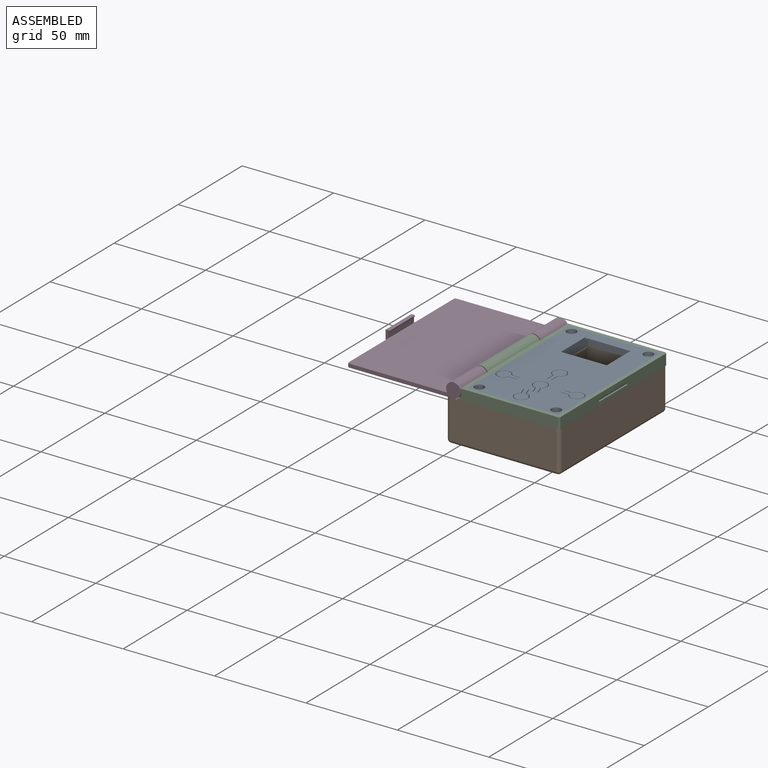
[diagram: assembled view]
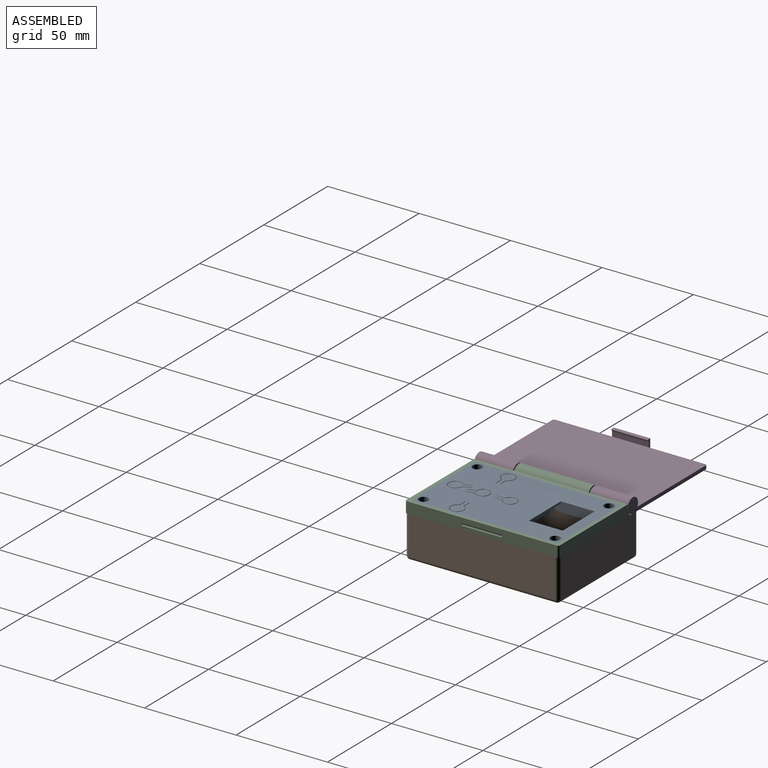
[diagram: assembled view, second angle]
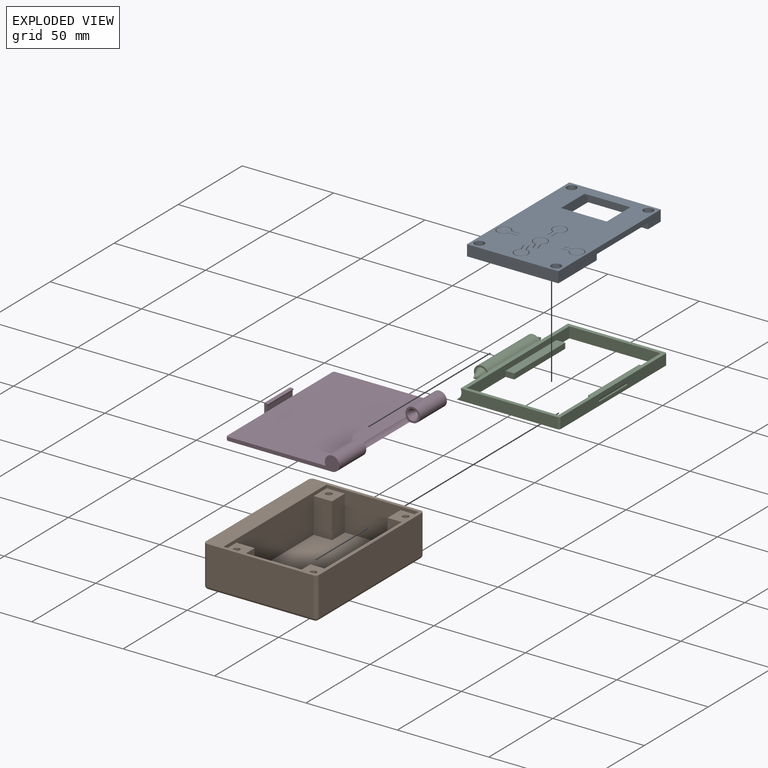
[diagram: exploded view]
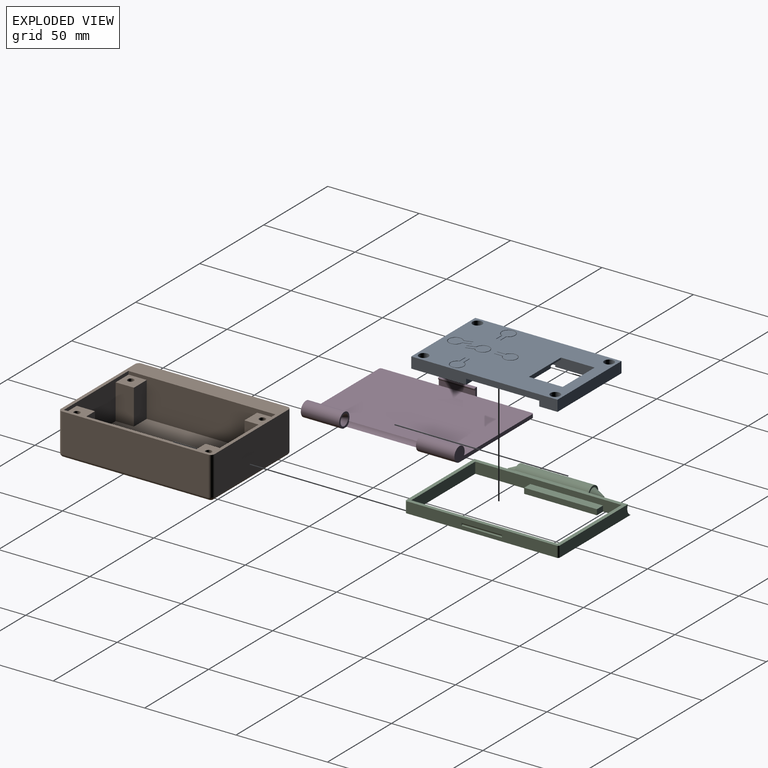
[diagram: exploded view, second angle]
FCSTD DOCUMENT  (FreeCAD 1.0R39285 (Git))
Label: BeerTrackerV2
License: All rights reserved
LicenseURL: https://en.wikipedia.org/wiki/All_rights_reserved
objects: Sketcher::SketchObject×29, PartDesign::Pocket×18, PartDesign::Pad×11, PartDesign::Mirrored×5, PartDesign::Fillet×5, PartDesign::Body×4, App::Link×4, App::FeaturePython×4, App::VarSet×1, Assembly::JointGroup×1, Assembly::AssemblyObject×1
note: 174 computed .brp shape members not serialized (recipe doc carries the construction recipe); baked Part::Feature solids carry a one-line shape summary decoded from their .brp

FEATURE [App::VarSet] VarSet
  Height = 23
  Length = 80
  PCBThickness = 1.6
  WallThickness = 2
  Width = 50
FEATURE [Sketcher::SketchObject] Sketch
  ArcFitTolerance = 1e-06
  AttachmentOffset = pos=(0,0,21) rot=(0,0,1;0rad)
  AttachmentSupport = -> [XZ_Plane]
  FullyConstrained = true
  MakeInternals = false
  MapMode = 5
  Placement = pos=(0,-21,4.7e-15) rot=(1,0,0;1.5708rad)
  expr: .AttachmentOffset.Base.z = (VarSet.Length + 2 * VarSet.WallThickness) / 4
  sketch-geometry (1):
    g0: Circle CenterX=0 CenterY=0 CenterZ=0 NormalX=0 NormalY=0 NormalZ=1 AngleXU=0 Radius=4
  constraints (2):
    c: Coincident(g0,g-1)
    c: Diameter(g0) = 8
FEATURE [PartDesign::Pad] Pad
  Direction = (0,-1,2e-16)
  Length = 21
  Length2 = 10
  Placement = pos=(0,0,0) rot=(1,0,0;1.5708rad)
  Profile = -> Sketch
  ReferenceAxis = -> Sketch [N_Axis]
  Refine = true
  Suppressed = false
  Type = 0
  expr: Length = (VarSet.Length + 2 * VarSet.WallThickness) / 4
FEATURE [Sketcher::SketchObject] Sketch001
  ArcFitTolerance = 1e-06
  AttachmentSupport = -> [Pad]
  ExternalGeometry = -> [Pad]
  FullyConstrained = true
  MakeInternals = false
  MapMode = 5
  Placement = pos=(0,-42,0) rot=(1,0,0;1.5708rad)
  expr: Constraints[12] = VarSet.WallThickness
  expr: Constraints[7] = VarSet.Width + VarSet.WallThickness * 2
  sketch-geometry (5):
    g0: LineSegment StartX=2.112e-13 StartY=4 StartZ=0 EndX=58 EndY=4 EndZ=0
    g1: LineSegment [constr] StartX=4 StartY=0 StartZ=0 EndX=4 EndY=4 EndZ=0
    g2: LineSegment StartX=58 StartY=4 StartZ=0 EndX=58 EndY=2 EndZ=0
    g3: LineSegment StartX=58 StartY=2 StartZ=0 EndX=3.4641 EndY=2 EndZ=0
    g4: ArcOfCircle CenterX=-6.98259e-07 CenterY=-1.20942e-06 CenterZ=0 NormalX=0 NormalY=0 NormalZ=1 AngleXU=0 Radius=4 StartAngle=0.523599 EndAngle=1.5708
  constraints (17):
    c: Horizontal(g0)
    c: PointOnObject(g0,g-2)
    c: PointOnObject(g0,g-3)
    c: Vertical(g1)
    c: PointOnObject(g1,g-1)
    c: PointOnObject(g1,g-3)
    c: PointOnObject(g1,g0)
    c: DistanceX(g1,g0) = 54
    c: Coincident(g2,g0)
    c: Vertical(g2)
    c: Coincident(g3,g2)
    c: Horizontal(g3)
    c: Distance(g2,g2) = 2
    c: Coincident(g4,g3)
    c: Coincident(g4,g0)
    c: PointOnObject(g3,g-3)
    c: Tangent(g4,g-3)
FEATURE [PartDesign::Pad] Pad001
  BaseFeature = -> Pad
  Direction = (0,-1,2e-16)
  Length = 84
  Length2 = 10
  Placement = pos=(0,0,0) rot=(1,0,0;1.5708rad)
  Profile = -> Sketch001
  ReferenceAxis = -> Sketch001 [N_Axis]
  Refine = true
  Reversed = true
  Suppressed = false
  Type = 0
  expr: Length = VarSet.Length + VarSet.WallThickness * 2
FEATURE [Sketcher::SketchObject] Sketch002
  ArcFitTolerance = 1e-06
  AttachmentSupport = -> [Pad001]
  FullyConstrained = true
  MakeInternals = false
  MapMode = 5
  Placement = pos=(0,-21,0) rot=(-1,0,0;1.5708rad)
  sketch-geometry (1):
    g0: Circle CenterX=0 CenterY=0 CenterZ=0 NormalX=0 NormalY=0 NormalZ=1 AngleXU=0 Radius=3
  constraints (2):
    c: Coincident(g0,g-1)
    c: Diameter(g0) = 6
FEATURE [PartDesign::Pocket] Pocket
  BaseFeature = -> Pad001
  Direction = (0,-1,-2e-16)
  Length = 6
  Length2 = 5
  Placement = pos=(0,0,0) rot=(1,0,0;1.5708rad)
  Profile = -> Sketch002
  ReferenceAxis = -> Sketch002 [N_Axis]
  Refine = true
  Suppressed = false
  TaperAngle = -25
  Type = 0
FEATURE [PartDesign::Mirrored] Mirrored
  BaseFeature = -> Pocket
  MirrorPlane = -> XZ_Plane
  Originals = -> [Pad,Pocket]
  Placement = pos=(0,0,0) rot=(1,0,0;1.5708rad)
  Refine = true
  Suppressed = false
  TransformMode = 0
FEATURE [Sketcher::SketchObject] Sketch003
  ArcFitTolerance = 1e-06
  AttachmentSupport = -> [XZ_Plane001]
  FullyConstrained = true
  MakeInternals = false
  MapMode = 5
  Placement = pos=(0,0,0) rot=(1,0,0;1.5708rad)
  sketch-geometry (1):
    g0: Circle CenterX=0 CenterY=0 CenterZ=0 NormalX=0 NormalY=0 NormalZ=1 AngleXU=0 Radius=4
  constraints (2):
    c: Coincident(g0,g-1)
    c: Diameter(g0) = 8
FEATURE [PartDesign::Pad] Pad002
  Direction = (0,-1,2e-16)
  Length = 40.6
  Length2 = 10
  Midplane = true
  Placement = pos=(0,0,0) rot=(1,0,0;1.5708rad)
  Profile = -> Sketch003
  ReferenceAxis = -> Sketch003 [N_Axis]
  Refine = true
  Suppressed = false
  Type = 0
  expr: Length = (VarSet.Length + VarSet.WallThickness) / 2 - 0.4 mm
FEATURE [Sketcher::SketchObject] Sketch006
  ArcFitTolerance = 1e-06
  AttachmentSupport = -> [Pad002]
  FullyConstrained = true
  MakeInternals = false
  MapMode = 5
  Placement = pos=(0,-20.3,0) rot=(1,0,0;1.5708rad)
  sketch-geometry (1):
    g0: Circle CenterX=0 CenterY=0 CenterZ=0 NormalX=0 NormalY=0 NormalZ=1 AngleXU=0 Radius=3
  constraints (2):
    c: Coincident(g0,g-1)
    c: Diameter(g0) = 6
FEATURE [PartDesign::Pad] Pad003
  BaseFeature = -> Pad002
  Direction = (0,-1,2e-16)
  Length = 6
  Length2 = 10
  Placement = pos=(0,0,0) rot=(1,0,0;1.5708rad)
  Profile = -> Sketch006
  ReferenceAxis = -> Sketch006 [N_Axis]
  Suppressed = false
  TaperAngle = -25
  Type = 0
FEATURE [PartDesign::Mirrored] Mirrored001
  BaseFeature = -> Pad003
  MirrorPlane = -> XZ_Plane001
  Originals = -> [Pad003]
  Placement = pos=(0,0,0) rot=(1,0,0;1.5708rad)
  Suppressed = false
  TransformMode = 0
FEATURE [Sketcher::SketchObject] Sketch007
  ArcFitTolerance = 1e-06
  AttachmentSupport = -> [XZ_Plane001]
  ExternalGeometry = -> [Mirrored001]
  FullyConstrained = true
  MakeInternals = false
  MapMode = 5
  Placement = pos=(0,0,0) rot=(1,0,0;1.5708rad)
  expr: Constraints[20] = VarSet.Width + 2 * VarSet.WallThickness
  expr: Constraints[21] = VarSet.WallThickness
  sketch-geometry (7):
    g0: LineSegment [constr] StartX=0 StartY=4 StartZ=0 EndX=0 EndY=2 EndZ=0
    g1: LineSegment [constr] StartX=0 StartY=2 StartZ=0 EndX=3.4641 EndY=2 EndZ=0
    g2: ArcOfCircle CenterX=0 CenterY=0 CenterZ=0 NormalX=0 NormalY=0 NormalZ=1 AngleXU=0 Radius=4 StartAngle=4.71239 EndAngle=6.80678
    g3: LineSegment StartX=-7e-16 StartY=-4 StartZ=0 EndX=58 EndY=-4 EndZ=0
    g4: LineSegment StartX=3.4641 StartY=2 StartZ=0 EndX=58 EndY=2 EndZ=0
    g5: LineSegment StartX=58 StartY=2 StartZ=0 EndX=58 EndY=-4 EndZ=0
    g6: LineSegment [constr] StartX=4 StartY=2 StartZ=0 EndX=4 EndY=0 EndZ=0
  constraints (22):
    c: PointOnObject(g0,g-3)
    c: PointOnObject(g0,g-2)
    c: PointOnObject(g0,g-2)
    c: Coincident(g1,g0)
    c: PointOnObject(g1,g-3)
    c: Horizontal(g1)
    c: Coincident(g2,g-1)
    c: Coincident(g2,g1)
    c: PointOnObject(g2,g-2)
    c: Coincident(g3,g2)
    c: Horizontal(g3)
    c: Coincident(g4,g1)
    c: Horizontal(g4)
    c: Coincident(g5,g4)
    c: Vertical(g5)
    c: Coincident(g5,g3)
    c: PointOnObject(g6,g4)
    c: Vertical(g6)
    c: PointOnObject(g6,g2)
    c: PointOnObject(g6,g-1)
    c: DistanceX(g6,g4) = 54
    c: DistanceY(g0,g0) = 2
FEATURE [PartDesign::Pad] Pad004
  BaseFeature = -> Mirrored001
  Direction = (0,-1,2e-16)
  Length = 84
  Length2 = 10
  Midplane = true
  Placement = pos=(0,0,0) rot=(1,0,0;1.5708rad)
  Profile = -> Sketch007
  ReferenceAxis = -> Sketch007 [N_Axis]
  Suppressed = false
  Type = 0
  expr: Length = VarSet.Length + VarSet.WallThickness * 2
FEATURE [Sketcher::SketchObject] Sketch008
  ArcFitTolerance = 1e-06
  AttachmentSupport = -> [Pad004]
  ExternalGeometry = -> [Pad004]
  FullyConstrained = true
  MakeInternals = false
  MapMode = 5
  Placement = pos=(0,-42,0) rot=(1,0,0;1.5708rad)
  sketch-geometry (4):
    g0: ArcOfCircle CenterX=0 CenterY=0 CenterZ=0 NormalX=0 NormalY=0 NormalZ=1 AngleXU=0 Radius=4 StartAngle=4.71239 EndAngle=6.80678
    g1: ArcOfCircle CenterX=0 CenterY=0 CenterZ=0 NormalX=0 NormalY=0 NormalZ=1 AngleXU=0 Radius=4.35101 StartAngle=5.11682 EndAngle=6.7608
    g2: LineSegment StartX=-7e-16 StartY=-4 StartZ=0 EndX=1.7121 EndY=-4 EndZ=0
    g3: LineSegment StartX=3.4641 StartY=2 StartZ=0 EndX=3.8641 EndY=2 EndZ=0
  constraints (11):
    c: Coincident(g0,g-3)
    c: Coincident(g0,g-1)
    c: PointOnObject(g0,g-2)
    c: Coincident(g1,g0)
    c: Coincident(g2,g0)
    c: Coincident(g2,g1)
    c: Horizontal(g2)
    c: Coincident(g3,g0)
    c: Coincident(g3,g1)
    c: Horizontal(g3)
    c: Distance(g3,g3) = 0.4
FEATURE [PartDesign::Pocket] Pocket002
  BaseFeature = -> Pad004
  Direction = (0,1,-2e-16)
  Length = 22
  Length2 = 5
  Placement = pos=(0,0,0) rot=(1,0,0;1.5708rad)
  Profile = -> Sketch008
  ReferenceAxis = -> Sketch008 [N_Axis]
  Suppressed = false
  Type = 0
  expr: Length = (VarSet.Length + VarSet.WallThickness * 2) / 4 + 1 mm
FEATURE [PartDesign::Mirrored] Mirrored002
  BaseFeature = -> Pocket002
  MirrorPlane = -> XZ_Plane001
  Originals = -> [Pocket002]
  Placement = pos=(0,0,0) rot=(1,0,0;1.5708rad)
  Suppressed = false
  TransformMode = 0
FEATURE [Sketcher::SketchObject] Sketch009
  ArcFitTolerance = 1e-06
  AttachmentSupport = -> [Mirrored]
  ExternalGeometry = -> [Mirrored]
  FullyConstrained = true
  MakeInternals = false
  MapMode = 5
  Placement = pos=(0,-21,0) rot=(-1,0,0;1.5708rad)
  sketch-geometry (4):
    g0: ArcOfCircle CenterX=0 CenterY=0 CenterZ=0 NormalX=0 NormalY=0 NormalZ=1 AngleXU=0 Radius=4 StartAngle=4.71239 EndAngle=5.75959
    g1: LineSegment StartX=3.4641 StartY=-2 StartZ=0 EndX=3.8641 EndY=-2 EndZ=0
    g2: LineSegment StartX=-7e-16 StartY=-4 StartZ=0 EndX=1.7121 EndY=-4 EndZ=0
    g3: ArcOfCircle CenterX=0 CenterY=0 CenterZ=0 NormalX=0 NormalY=0 NormalZ=1 AngleXU=0 Radius=4.35101 StartAngle=5.11682 EndAngle=5.80557
  constraints (10):
    c: Coincident(g0,g-1)
    c: Coincident(g0,g-3)
    c: PointOnObject(g0,g-2)
    c: Coincident(g1,g0)
    c: Horizontal(g1)
    c: Tangent(g2,g0) = -1.5708
    c: Coincident(g3,g1)
    c: Coincident(g2,g3)
    c: Coincident(g3,g0)
    c: Distance(g1,g1) = 0.4
FEATURE [PartDesign::Pocket] Pocket003
  BaseFeature = -> Mirrored
  Direction = (0,-1,-2e-16)
  Length = 42
  Length2 = 5
  Placement = pos=(0,0,0) rot=(1,0,0;1.5708rad)
  Profile = -> Sketch009
  ReferenceAxis = -> Sketch009 [N_Axis]
  Reversed = true
  Suppressed = false
  Type = 0
  expr: Length = (VarSet.Length + 2 * VarSet.WallThickness) / 2
FEATURE [Sketcher::SketchObject] Sketch010
  ArcFitTolerance = 1e-06
  AttachmentSupport = -> [Mirrored002]
  ExternalGeometry = -> [Mirrored002]
  FullyConstrained = true
  MakeInternals = false
  MapMode = 5
  Placement = pos=(0,9e-16,2) rot=(0,0,1;3.14159rad)
  expr: Constraints[17] = VarSet.WallThickness
  expr: Constraints[8] = VarSet.Width
  expr: Constraints[9] = VarSet.Length
  sketch-geometry (6):
    g0: LineSegment StartX=-56 StartY=40 StartZ=0 EndX=-56 EndY=-40 EndZ=0
    g1: LineSegment StartX=-56 StartY=-40 StartZ=0 EndX=-6 EndY=-40 EndZ=0
    g2: LineSegment StartX=-6 StartY=-40 StartZ=0 EndX=-6 EndY=40 EndZ=0
    g3: LineSegment StartX=-6 StartY=40 StartZ=0 EndX=-56 EndY=40 EndZ=0
    g4: LineSegment [constr] StartX=-56 StartY=-42 StartZ=0 EndX=-56 EndY=-40 EndZ=0
    g5: LineSegment [constr] StartX=-58 StartY=-40 StartZ=0 EndX=-56 EndY=-40 EndZ=0
  constraints (18):
    c: Coincident(g0,g1)
    c: Coincident(g1,g2)
    c: Coincident(g2,g3)
    c: Coincident(g3,g0)
    c: Vertical(g0)
    c: Vertical(g2)
    c: Horizontal(g1)
    c: Horizontal(g3)
    c: DistanceX(g1,g1) = 50
    c: DistanceY(g0,g0) = 80
    c: PointOnObject(g4,g-3)
    c: Coincident(g4,g0)
    c: PointOnObject(g5,g-4)
    c: Coincident(g5,g0)
    c: Horizontal(g5)
    c: Vertical(g4)
    c: Equal(g4,g5)
    c: DistanceY(g4,g4) = 2
FEATURE [PartDesign::Pocket] Pocket004
  BaseFeature = -> Mirrored002
  Direction = (0,0,-1)
  Length = 0
  Length2 = 5
  Placement = pos=(0,0,0) rot=(1,0,0;1.5708rad)
  Profile = -> Sketch010
  ReferenceAxis = -> Sketch010 [N_Axis]
  Suppressed = false
  Type = 3
  UpToFace = -> Mirrored002 [Face4]
FEATURE [Sketcher::SketchObject] Sketch011
  ArcFitTolerance = 1e-06
  AttachmentSupport = -> [XY_Plane003]
  FullyConstrained = true
  MakeInternals = false
  MapMode = 5
  expr: Constraints[8] = VarSet.Width
  expr: Constraints[9] = VarSet.Length
  sketch-geometry (4):
    g0: LineSegment StartX=-25 StartY=40 StartZ=0 EndX=-25 EndY=-40 EndZ=0
    g1: LineSegment StartX=-25 StartY=-40 StartZ=0 EndX=25 EndY=-40 EndZ=0
    g2: LineSegment StartX=25 StartY=-40 StartZ=0 EndX=25 EndY=40 EndZ=0
    g3: LineSegment StartX=25 StartY=40 StartZ=0 EndX=-25 EndY=40 EndZ=0
  constraints (10):
    c: Coincident(g0,g1)
    c: Coincident(g1,g2)
    c: Coincident(g2,g3)
    c: Coincident(g3,g0)
    c: Vertical(g2)
    c: Horizontal(g1)
    c: Symmetric(g0,g2,g-2)
    c: Symmetric(g0,g0,g-1)
    c: DistanceX(g3,g3) = 50
    c: DistanceY(g2,g2) = 80
FEATURE [PartDesign::Pad] Pad005
  Direction = (0,0,1)
  Length = 6
  Length2 = 10
  Profile = -> Sketch011
  ReferenceAxis = -> Sketch011 [N_Axis]
  Refine = true
  Suppressed = false
  Type = 0
FEATURE [Sketcher::SketchObject] Sketch012
  ArcFitTolerance = 1e-06
  AttachmentSupport = -> [Pad005]
  FullyConstrained = true
  MakeInternals = false
  MapMode = 5
  Placement = pos=(0,0,6) rot=(0,0,1;0rad)
  sketch-geometry (8):
    g0: LineSegment [constr] StartX=-21 StartY=36 StartZ=0 EndX=-21 EndY=-36 EndZ=0
    g1: LineSegment [constr] StartX=-21 StartY=-36 StartZ=0 EndX=21 EndY=-36 EndZ=0
    g2: LineSegment [constr] StartX=21 StartY=-36 StartZ=0 EndX=21 EndY=36 EndZ=0
    g3: LineSegment [constr] StartX=21 StartY=36 StartZ=0 EndX=-21 EndY=36 EndZ=0
    g4: Circle CenterX=-21 CenterY=36 CenterZ=0 NormalX=0 NormalY=0 NormalZ=1 AngleXU=0 Radius=1.7
    g5: Circle CenterX=21 CenterY=36 CenterZ=0 NormalX=0 NormalY=0 NormalZ=1 AngleXU=0 Radius=1.7
    g6: Circle CenterX=-21 CenterY=-36 CenterZ=0 NormalX=0 NormalY=0 NormalZ=1 AngleXU=0 Radius=1.7
    g7: Circle CenterX=21 CenterY=-36 CenterZ=0 NormalX=0 NormalY=0 NormalZ=1 AngleXU=0 Radius=1.7
  constraints (18):
    c: Coincident(g0,g1)
    c: Coincident(g1,g2)
    c: Coincident(g2,g3)
    c: Coincident(g3,g0)
    c: Vertical(g2)
    c: Horizontal(g3)
    c: Symmetric(g1,g0,g-2)
    c: Symmetric(g0,g0,g-1)
    c: Coincident(g4,g0)
    c: Coincident(g5,g2)
    c: Coincident(g6,g0)
    c: Coincident(g7,g1)
    c: Equal(g4,g5)
    c: Equal(g5,g7)
    c: Equal(g7,g6)
    c: DistanceY(g2,g2) = 72
    c: DistanceX(g3,g3) = 42
    c: Diameter(g5) = 3.4
FEATURE [PartDesign::Pocket] Pocket005
  BaseFeature = -> Pad005
  Direction = (0,0,-1)
  Length = 0
  Length2 = 5
  Profile = -> Sketch012
  ReferenceAxis = -> Sketch012 [N_Axis]
  Refine = true
  Suppressed = false
  Type = 3
  UpToFace = -> Pad005 [Face5]
FEATURE [Sketcher::SketchObject] Sketch013
  ArcFitTolerance = 1e-06
  AttachmentSupport = -> [Pocket005]
  ExternalGeometry = -> [Pocket005]
  FullyConstrained = true
  MakeInternals = false
  MapMode = 5
  Placement = pos=(0,0,0) rot=(1,0,0;3.14159rad)
  sketch-geometry (24):
    g0: LineSegment StartX=3.5 StartY=36.3 StartZ=0 EndX=-3.5 EndY=36.3 EndZ=0
    g1: LineSegment StartX=-3.5 StartY=36.3 StartZ=0 EndX=-3.5 EndY=30.3 EndZ=0
    g2: LineSegment StartX=-3.5 StartY=30.3 StartZ=0 EndX=3.5 EndY=30.3 EndZ=0
    g3: LineSegment StartX=3.5 StartY=30.3 StartZ=0 EndX=3.5 EndY=36.3 EndZ=0
    g4: LineSegment StartX=3.5 StartY=0.3 StartZ=0 EndX=3.5 EndY=6.3 EndZ=0
    g5: LineSegment StartX=3.5 StartY=6.3 StartZ=0 EndX=-3.5 EndY=6.3 EndZ=0
    g6: LineSegment StartX=-3.5 StartY=6.3 StartZ=0 EndX=-3.5 EndY=0.3 EndZ=0
    g7: LineSegment StartX=-3.5 StartY=0.3 StartZ=0 EndX=3.5 EndY=0.3 EndZ=0
    g8: LineSegment StartX=3.5 StartY=15.3 StartZ=0 EndX=3.5 EndY=21.3 EndZ=0
    g9: LineSegment StartX=3.5 StartY=21.3 StartZ=0 EndX=-3.5 EndY=21.3 EndZ=0
    g10: LineSegment StartX=-3.5 StartY=21.3 StartZ=0 EndX=-3.5 EndY=15.3 EndZ=0
    g11: LineSegment StartX=-3.5 StartY=15.3 StartZ=0 EndX=3.5 EndY=15.3 EndZ=0
    g12: LineSegment StartX=23.5 StartY=15.3 StartZ=0 EndX=23.5 EndY=21.3 EndZ=0
    g13: LineSegment StartX=23.5 StartY=21.3 StartZ=0 EndX=16.5 EndY=21.3 EndZ=0
    g14: LineSegment StartX=16.5 StartY=21.3 StartZ=0 EndX=16.5 EndY=15.3 EndZ=0
    g15: LineSegment StartX=16.5 StartY=15.3 StartZ=0 EndX=23.5 EndY=15.3 EndZ=0
    g16: LineSegment StartX=-16.5 StartY=15.3 StartZ=0 EndX=-16.5 EndY=21.3 EndZ=0
    g17: LineSegment StartX=-16.5 StartY=21.3 StartZ=0 EndX=-23.5 EndY=21.3 EndZ=0
    g18: LineSegment StartX=-23.5 StartY=21.3 StartZ=0 EndX=-23.5 EndY=15.3 EndZ=0
    g19: LineSegment StartX=-23.5 StartY=15.3 StartZ=0 EndX=-16.5 EndY=15.3 EndZ=0
    g20: LineSegment [constr] StartX=16.5 StartY=15.3 StartZ=0 EndX=3.5 EndY=15.3 EndZ=0
    g21: LineSegment [constr] StartX=-3.5 StartY=15.3 StartZ=0 EndX=-16.5 EndY=15.3 EndZ=0
    g22: LineSegment [constr] StartX=-3.5 StartY=6.3 StartZ=0 EndX=-3.5 EndY=15.3 EndZ=0
    g23: LineSegment [constr] StartX=-3.5 StartY=21.3 StartZ=0 EndX=-3.5 EndY=30.3 EndZ=0
  constraints (65):
    c: Coincident(g0,g1)
    c: Coincident(g1,g2)
    c: Coincident(g2,g3)
    c: Coincident(g3,g0)
    c: Horizontal(g0)
    c: Vertical(g1)
    c: Vertical(g3)
    c: Coincident(g4,g5)
    c: Coincident(g5,g6)
    c: Coincident(g6,g7)
    c: Coincident(g7,g4)
    c: Vertical(g4)
    c: Vertical(g6)
    c: Horizontal(g5)
    c: Coincident(g8,g9)
    c: Coincident(g9,g10)
    c: Coincident(g10,g11)
    c: Coincident(g11,g8)
    c: Vertical(g8)
    c: Vertical(g10)
    c: Horizontal(g9)
    c: Coincident(g12,g13)
    c: Coincident(g13,g14)
    c: Coincident(g14,g15)
    c: Coincident(g15,g12)
    c: Vertical(g12)
    c: Vertical(g14)
    c: Horizontal(g13)
    c: Horizontal(g15)
    c: Coincident(g16,g17)
    c: Coincident(g17,g18)
    c: Coincident(g18,g19)
    c: Coincident(g19,g16)
    c: Vertical(g16)
    c: Vertical(g18)
    c: Horizontal(g17)
    c: Horizontal(g19)
    c: Equal(g15,g7)
    c: Equal(g7,g19)
    c: Equal(g19,g11)
    c: Equal(g11,g2)
    c: Equal(g14,g6)
    c: Equal(g6,g10)
    c: Equal(g10,g18)
    c: Equal(g18,g1)
    c: Symmetric(g8,g10,g-2)
    c: Symmetric(g4,g6,g-2)
    c: Symmetric(g2,g1,g-2)
    c: Coincident(g20,g14)
    c: Coincident(g20,g8)
    c: Coincident(g21,g10)
    c: Coincident(g21,g16)
    c: Horizontal(g21)
    c: Coincident(g22,g5)
    c: Coincident(g22,g10)
    c: Coincident(g23,g9)
    c: Coincident(g23,g1)
    c: Equal(g20,g21)
    c: Horizontal(g20)
    c: Equal(g22,g23)
    c: Distance(g20,g20) = 13
    c: Distance(g22,g22) = 9
    c: DistanceX(g5,g5) = 7
    c: DistanceY(g4,g4) = 6
    c: DistanceY(g0,g-3) = 3.7
FEATURE [PartDesign::Pocket] Pocket006
  BaseFeature = -> Pocket005
  Direction = (0,0,1)
  Length = 5
  Length2 = 5
  Profile = -> Sketch013
  ReferenceAxis = -> Sketch013 [N_Axis]
  Refine = true
  Suppressed = false
  Type = 0
FEATURE [Sketcher::SketchObject] Sketch014
  ArcFitTolerance = 1e-06
  AttachmentSupport = -> [Pocket006]
  ExternalGeometry = -> [Pocket006]
  FullyConstrained = true
  MakeInternals = false
  MapMode = 5
  Placement = pos=(0,0,0) rot=(1,0,0;3.14159rad)
  sketch-geometry (4):
    g0: LineSegment StartX=13.5 StartY=-38.1 StartZ=0 EndX=13.5 EndY=-11.1 EndZ=0
    g1: LineSegment StartX=13.5 StartY=-11.1 StartZ=0 EndX=-13.5 EndY=-11.1 EndZ=0
    g2: LineSegment StartX=-13.5 StartY=-11.1 StartZ=0 EndX=-13.5 EndY=-38.1 EndZ=0
    g3: LineSegment StartX=-13.5 StartY=-38.1 StartZ=0 EndX=13.5 EndY=-38.1 EndZ=0
  constraints (11):
    c: Coincident(g0,g1)
    c: Coincident(g1,g2)
    c: Coincident(g2,g3)
    c: Coincident(g3,g0)
    c: Vertical(g0)
    c: Vertical(g2)
    c: Horizontal(g1)
    c: Symmetric(g0,g2,g-2)
    c: DistanceY(g0,g0) = 27
    c: Equal(g1,g0)
    c: DistanceY(g-3,g0) = 1.9
FEATURE [PartDesign::Pocket] Pocket007
  BaseFeature = -> Pocket006
  Direction = (0,0,1)
  Length = 5
  Length2 = 5
  Profile = -> Sketch014
  ReferenceAxis = -> Sketch014 [N_Axis]
  Refine = true
  Suppressed = false
  Type = 0
FEATURE [Sketcher::SketchObject] Sketch015
  ArcFitTolerance = 1e-06
  AttachmentSupport = -> [Pocket007]
  ExternalGeometry = -> [Pocket007]
  FullyConstrained = true
  MakeInternals = false
  MapMode = 5
  Placement = pos=(0,0,5) rot=(1,0,0;3.14159rad)
  sketch-geometry (4):
    g0: LineSegment StartX=-12.5 StartY=-15.6 StartZ=0 EndX=-12.5 EndY=-34.1 EndZ=0
    g1: LineSegment StartX=-12.5 StartY=-34.1 StartZ=0 EndX=12.5 EndY=-34.1 EndZ=0
    g2: LineSegment StartX=12.5 StartY=-34.1 StartZ=0 EndX=12.5 EndY=-15.6 EndZ=0
    g3: LineSegment StartX=12.5 StartY=-15.6 StartZ=0 EndX=-12.5 EndY=-15.6 EndZ=0
  constraints (11):
    c: Coincident(g0,g1)
    c: Coincident(g1,g2)
    c: Coincident(g2,g3)
    c: Coincident(g3,g0)
    c: Vertical(g0)
    c: Vertical(g2)
    c: Horizontal(g1)
    c: DistanceY(g2,g2) = 18.5
    c: DistanceX(g3,g3) = 25
    c: Symmetric(g0,g2,g-2)
    c: DistanceY(g-3,g1) = 4
FEATURE [PartDesign::Pocket] Pocket008
  BaseFeature = -> Pocket007
  Direction = (0,0,1)
  Length = 0
  Length2 = 5
  Profile = -> Sketch015
  ReferenceAxis = -> Sketch015 [N_Axis]
  Refine = true
  Suppressed = false
  Type = 3
  UpToFace = -> Pocket007 [Face5]
FEATURE [Sketcher::SketchObject] Sketch017
  ArcFitTolerance = 1e-06
  AttachmentSupport = -> [Pocket008]
  ExternalGeometry = -> [Pocket008]
  FullyConstrained = true
  MakeInternals = false
  MapMode = 5
  Placement = pos=(0,0,0) rot=(1,0,0;3.14159rad)
  sketch-geometry (20):
    g0: LineSegment StartX=4.5 StartY=37.5 StartZ=0 EndX=-4.5 EndY=37.5 EndZ=0
    g1: LineSegment StartX=-4.5 StartY=37.5 StartZ=0 EndX=-4.5 EndY=22.3 EndZ=0
    g2: LineSegment StartX=-4.5 StartY=22.3 StartZ=0 EndX=-24 EndY=22.3 EndZ=0
    g3: LineSegment StartX=-24 StartY=22.3 StartZ=0 EndX=-24 EndY=14.3 EndZ=0
    g4: LineSegment StartX=-24 StartY=14.3 StartZ=0 EndX=-4.5 EndY=14.3 EndZ=0
    g5: LineSegment StartX=-4.5 StartY=14.3 StartZ=0 EndX=-4.5 EndY=-0.9 EndZ=0
    g6: LineSegment StartX=-4.5 StartY=-0.9 StartZ=0 EndX=4.5 EndY=-0.9 EndZ=0
    g7: LineSegment StartX=4.5 StartY=-0.9 StartZ=0 EndX=4.5 EndY=14.3 EndZ=0
    g8: LineSegment StartX=4.5 StartY=14.3 StartZ=0 EndX=24 EndY=14.3 EndZ=0
    g9: LineSegment StartX=24 StartY=14.3 StartZ=0 EndX=24 EndY=22.3 EndZ=0
    g10: LineSegment StartX=24 StartY=22.3 StartZ=0 EndX=4.5 EndY=22.3 EndZ=0
    g11: LineSegment StartX=4.5 StartY=22.3 StartZ=0 EndX=4.5 EndY=37.5 EndZ=0
    g12: LineSegment [constr] StartX=-4.5 StartY=22.3 StartZ=0 EndX=4.5 EndY=22.3 EndZ=0
    g13: LineSegment [constr] StartX=-4.5 StartY=14.3 StartZ=0 EndX=4.5 EndY=14.3 EndZ=0
    g14: LineSegment [constr] StartX=-4.5 StartY=22.3 StartZ=0 EndX=-4.5 EndY=14.3 EndZ=0
    g15: LineSegment [constr] StartX=4.5 StartY=22.3 StartZ=0 EndX=4.5 EndY=14.3 EndZ=0
    g16: LineSegment [constr] StartX=-3.5 StartY=21.3 StartZ=0 EndX=-3.5 EndY=22.3 EndZ=0
    g17: LineSegment [constr] StartX=-3.5 StartY=21.3 StartZ=0 EndX=-4.5 EndY=21.3 EndZ=0
    g18: LineSegment [constr] StartX=3.5 StartY=15.3 StartZ=0 EndX=3.5 EndY=14.3 EndZ=0
    g19: LineSegment [constr] StartX=3.5 StartY=15.3 StartZ=0 EndX=4.5 EndY=15.3 EndZ=0
  constraints (56):
    c: Coincident(g1,g2)
    c: Coincident(g1,g0)
    c: Coincident(g0,g11)
    c: Coincident(g10,g11)
    c: Coincident(g10,g9)
    c: Coincident(g9,g8)
    c: Coincident(g7,g8)
    c: Coincident(g7,g6)
    c: Coincident(g5,g6)
    c: Coincident(g4,g5)
    c: Coincident(g3,g4)
    c: Coincident(g3,g2)
    c: Vertical(g5)
    c: Vertical(g7)
    c: Vertical(g9)
    c: Vertical(g3)
    c: Vertical(g1)
    c: Vertical(g11)
    c: Horizontal(g2)
    c: Horizontal(g4)
    c: Horizontal(g6)
    c: Horizontal(g8)
    c: Horizontal(g10)
    c: Horizontal(g0)
    c: Equal(g2,g10)
    c: Equal(g1,g5)
    c: Coincident(g12,g1)
    c: Coincident(g12,g10)
    c: Horizontal(g12)
    c: Coincident(g13,g4)
    c: Coincident(g13,g7)
    c: Horizontal(g13)
    c: Coincident(g14,g1)
    c: Coincident(g14,g4)
    c: Coincident(g15,g10)
    c: Coincident(g15,g7)
    c: Vertical(g15)
    c: Vertical(g14)
    c: Coincident(g16,g-3)
    c: PointOnObject(g16,g12)
    c: Vertical(g16)
    c: Coincident(g17,g16)
    c: PointOnObject(g17,g14)
    c: Horizontal(g17)
    c: Coincident(g18,g-4)
    c: PointOnObject(g18,g13)
    c: Vertical(g18)
    c: Coincident(g19,g18)
    c: PointOnObject(g19,g15)
    c: Horizontal(g19)
    c: Equal(g19,g18)
    c: Equal(g18,g17)
    c: Equal(g17,g16)
    c: DistanceX(g9,g-5) = 1
    c: Distance(g17,g17) = 1
    c: DistanceY(g0,g-5) = 2.5
FEATURE [PartDesign::Pocket] Pocket009
  BaseFeature = -> Pocket008
  Direction = (0,0,1)
  Length = 5
  Length2 = 5
  Profile = -> Sketch017
  ReferenceAxis = -> Sketch017 [N_Axis]
  Refine = true
  Suppressed = false
  Type = 0
FEATURE [Sketcher::SketchObject] Sketch018
  ArcFitTolerance = 1e-06
  AttachmentSupport = -> [Pocket009]
  FullyConstrained = false
  MakeInternals = false
  MapMode = 5
  Placement = pos=(0,0,5) rot=(1,0,0;3.14159rad)
  sketch-geometry (60):
    g0: ArcOfCircle CenterX=0 CenterY=33.3 CenterZ=0 NormalX=0 NormalY=0 NormalZ=1 AngleXU=0 Radius=3.75 StartAngle=4.75114 EndAngle=10.3263
    g1: ArcOfCircle CenterX=-20 CenterY=18.3 CenterZ=0 NormalX=0 NormalY=0 NormalZ=1 AngleXU=0 Radius=3.75 StartAngle=0.354015 EndAngle=5.92917
    g2: ArcOfCircle CenterX=20 CenterY=18.3 CenterZ=0 NormalX=0 NormalY=0 NormalZ=1 AngleXU=0 Radius=3.75 StartAngle=3.49561 EndAngle=9.07076
    g3: ArcOfCircle CenterX=0 CenterY=3.3 CenterZ=0 NormalX=0 NormalY=0 NormalZ=1 AngleXU=0 Radius=3.75 StartAngle=1.92481 EndAngle=7.49997
    g4: ArcOfCircle CenterX=0 CenterY=18.3 CenterZ=0 NormalX=0 NormalY=0 NormalZ=1 AngleXU=0 Radius=3.75 StartAngle=1.60955 EndAngle=7.18471
    g5: LineSegment [constr] StartX=-32.7022 StartY=18.3 StartZ=0 EndX=32.7022 EndY=18.3 EndZ=0
    g6: LineSegment [constr] StartX=3.5 StartY=21.3 StartZ=0 EndX=3.5 EndY=18.3 EndZ=0
    g7: LineSegment [constr] StartX=3.5 StartY=15.3 StartZ=0 EndX=3.5 EndY=18.3 EndZ=0
    g8: ArcOfCircle CenterX=0 CenterY=33.3 CenterZ=0 NormalX=0 NormalY=0 NormalZ=1 AngleXU=0 Radius=3.45 StartAngle=4.6912 EndAngle=10.3862
    g9: ArcOfCircle CenterX=0 CenterY=18.3 CenterZ=0 NormalX=0 NormalY=0 NormalZ=1 AngleXU=0 Radius=3.45 StartAngle=1.54961 EndAngle=7.24465
    g10: ArcOfCircle CenterX=-20 CenterY=18.3 CenterZ=0 NormalX=0 NormalY=0 NormalZ=1 AngleXU=0 Radius=3.45 StartAngle=0.294075 EndAngle=5.98911
    g11: LineSegment StartX=-2.32657 StartY=30.359 StartZ=0 EndX=-3.72186 EndY=26.0808 EndZ=0
    g12: LineSegment StartX=0.145291 StartY=29.5528 StartZ=0 EndX=-1.25 EndY=25.2746 EndZ=0
    g13: LineSegment StartX=-1.97452 StartY=30.4709 StartZ=0 EndX=-3.43665 EndY=25.9877 EndZ=0
    g14: LineSegment StartX=-0.0730851 StartY=29.8508 StartZ=0 EndX=-1.53521 EndY=25.3676 EndZ=0
    g15: LineSegment StartX=-3.43665 StartY=25.9877 StartZ=0 EndX=-3.72186 EndY=26.0808 EndZ=0
    g16: LineSegment StartX=-1.25 StartY=25.2746 StartZ=0 EndX=-1.53521 EndY=25.3676 EndZ=0
    g17: LineSegment StartX=16.6981 StartY=19.3 StartZ=0 EndX=11.9825 EndY=19.3 EndZ=0
    g18: LineSegment StartX=16.6981 StartY=17.3 StartZ=0 EndX=11.9825 EndY=17.3 EndZ=0
    g19: LineSegment StartX=16.4825 StartY=17 StartZ=0 EndX=11.9825 EndY=17 EndZ=0
    g20: LineSegment StartX=16.4825 StartY=19.6 StartZ=0 EndX=11.9825 EndY=19.6 EndZ=0
    g21: LineSegment StartX=11.9825 StartY=19.3 StartZ=0 EndX=11.9825 EndY=19.6 EndZ=0
    g22: LineSegment StartX=11.9825 StartY=17 StartZ=0 EndX=11.9825 EndY=17.3 EndZ=0
    g23: LineSegment StartX=-16.6981 StartY=19.3 StartZ=0 EndX=-11.9825 EndY=19.3 EndZ=0
    g24: LineSegment StartX=-16.6981 StartY=17.3 StartZ=0 EndX=-11.9825 EndY=17.3 EndZ=0
    g25: LineSegment StartX=-16.4825 StartY=17 StartZ=0 EndX=-11.9825 EndY=17 EndZ=0
    g26: LineSegment StartX=-16.4825 StartY=19.6 StartZ=0 EndX=-11.9825 EndY=19.6 EndZ=0
    g27: LineSegment StartX=-11.9825 StartY=19.3 StartZ=0 EndX=-11.9825 EndY=19.6 EndZ=0
    g28: LineSegment StartX=-11.9825 StartY=17 StartZ=0 EndX=-11.9825 EndY=17.3 EndZ=0
    g29: LineSegment StartX=-1 StartY=6.60189 StartZ=0 EndX=-1 EndY=11.3175 EndZ=0
    g30: LineSegment StartX=1 StartY=6.60189 StartZ=0 EndX=1 EndY=11.3175 EndZ=0
    g31: LineSegment StartX=1.3 StartY=6.81746 StartZ=0 EndX=1.3 EndY=11.3175 EndZ=0
    g32: LineSegment StartX=-1.3 StartY=6.81746 StartZ=0 EndX=-1.3 EndY=11.3175 EndZ=0
    g33: LineSegment StartX=-1 StartY=11.3175 StartZ=0 EndX=-1.3 EndY=11.3175 EndZ=0
    g34: LineSegment StartX=1.3 StartY=11.3175 StartZ=0 EndX=1 EndY=11.3175 EndZ=0
    g35: LineSegment StartX=0.0730851 StartY=21.7492 StartZ=0 EndX=1.53521 EndY=26.2324 EndZ=0
    g36: LineSegment StartX=-0.145291 StartY=22.0472 StartZ=0 EndX=1.25 EndY=26.3254 EndZ=0
    g37: LineSegment StartX=1.53521 StartY=26.2324 StartZ=0 EndX=1.25 EndY=26.3254 EndZ=0
    g38: LineSegment StartX=1.97452 StartY=21.1291 StartZ=0 EndX=3.43665 EndY=25.6123 EndZ=0
    g39: LineSegment StartX=2.32657 StartY=21.241 StartZ=0 EndX=3.72186 EndY=25.5192 EndZ=0
    g40: LineSegment StartX=3.72186 StartY=25.5192 StartZ=0 EndX=3.43665 EndY=25.6123 EndZ=0
    g41: ArcOfCircle CenterX=20 CenterY=18.3 CenterZ=0 NormalX=0 NormalY=0 NormalZ=1 AngleXU=0 Radius=3.45 StartAngle=3.43567 EndAngle=9.1307
    g42: ArcOfCircle CenterX=0 CenterY=3.3 CenterZ=0 NormalX=0 NormalY=0 NormalZ=1 AngleXU=0 Radius=3.45 StartAngle=1.86487 EndAngle=7.55991
    g43: LineSegment [constr] StartX=0 StartY=36.3 StartZ=0 EndX=0 EndY=33.3 EndZ=0
    g44: LineSegment [constr] StartX=0 StartY=0.3 StartZ=0 EndX=0 EndY=3.3 EndZ=0
    g45: LineSegment [constr] StartX=23.5 StartY=18.3 StartZ=0 EndX=20 EndY=18.3 EndZ=0
    g46: LineSegment [constr] StartX=-0.145291 StartY=22.0472 StartZ=0 EndX=2.32657 EndY=21.241 EndZ=0
    g47: LineSegment [constr] StartX=-2.32657 StartY=30.359 StartZ=0 EndX=0.145291 EndY=29.5528 EndZ=0
    g48: LineSegment [constr] StartX=0.0730851 StartY=21.7492 StartZ=0 EndX=1.97452 EndY=21.1291 EndZ=0
    g49: LineSegment [constr] StartX=-16.6981 StartY=19.3 StartZ=0 EndX=-16.6981 EndY=17.3 EndZ=0
    g50: LineSegment [constr] StartX=-16.4825 StartY=17 StartZ=0 EndX=-16.4825 EndY=19.6 EndZ=0
    g51: LineSegment [constr] StartX=-1.97452 StartY=30.4709 StartZ=0 EndX=-0.0730851 EndY=29.8508 EndZ=0
    g52: LineSegment [constr] StartX=16.6981 StartY=19.3 StartZ=0 EndX=16.6981 EndY=17.3 EndZ=0
    g53: LineSegment [constr] StartX=16.4825 StartY=19.6 StartZ=0 EndX=16.4825 EndY=17 EndZ=0
    g54: LineSegment [constr] StartX=-1.3 StartY=6.81746 StartZ=0 EndX=1.3 EndY=6.81746 EndZ=0
    g55: LineSegment [constr] StartX=-1 StartY=6.60189 StartZ=0 EndX=1 EndY=6.60189 EndZ=0
    g56: LineSegment [constr] StartX=-3.43665 StartY=25.9877 StartZ=0 EndX=-1.53521 EndY=25.3676 EndZ=0
    g57: LineSegment [constr] StartX=1.53521 StartY=26.2324 StartZ=0 EndX=3.43665 EndY=25.6123 EndZ=0
    g58: LineSegment [constr] StartX=-1.25 StartY=25.2746 StartZ=0 EndX=0 EndY=25.8 EndZ=0
    g59: LineSegment [constr] StartX=0 StartY=25.8 StartZ=0 EndX=1.25 EndY=26.3254 EndZ=0
  constraints (168):
    c: PointOnObject(g0,g-2)
    c: PointOnObject(g3,g-2)
    c: PointOnObject(g4,g-2)
    c: Symmetric(g5,g5,g-2)
    c: PointOnObject(g1,g5)
    c: PointOnObject(g4,g5)
    c: PointOnObject(g2,g5)
    c: Coincident(g6,g-3)
    c: PointOnObject(g6,g5)
    c: Vertical(g6)
    c: Coincident(g7,g-4)
    c: Coincident(g7,g6)
    c: Equal(g6,g7)
    c: Equal(g0,g1)
    c: Equal(g4,g3)
    c: Coincident(g8,g0)
    c: Coincident(g9,g4)
    c: Coincident(g10,g1)
    c: Equal(g10,g9)
    c: Coincident(g15,g13)
    c: Coincident(g15,g11)
    c: Coincident(g16,g12)
    c: Coincident(g16,g14)
    c: Coincident(g8,g13)
    c: Coincident(g0,g11)
    c: Coincident(g0,g12)
    c: Coincident(g8,g14)
    c: Horizontal(g17)
    c: Horizontal(g18)
    c: Horizontal(g19)
    c: Horizontal(g20)
    c: Coincident(g21,g17)
    c: Coincident(g21,g20)
    c: Coincident(g22,g19)
    c: Coincident(g22,g18)
    c: Vertical(g22)
    c: Horizontal(g23)
    c: Horizontal(g24)
    c: Horizontal(g25)
    c: Horizontal(g26)
    c: Coincident(g27,g23)
    c: Coincident(g27,g26)
    c: Coincident(g28,g25)
    c: Coincident(g28,g24)
    c: PointOnObject(g29,g42)
    c: Vertical(g29)
    c: Vertical(g30)
    c: Vertical(g31)
    c: Vertical(g32)
    c: Coincident(g33,g29)
    c: Coincident(g33,g32)
    c: Coincident(g34,g31)
    c: Coincident(g34,g30)
    c: Coincident(g37,g35)
    c: Coincident(g37,g36)
    c: Coincident(g40,g39)
    c: Coincident(g40,g38)
    c: Coincident(g41,g17)
    c: Coincident(g41,g18)
    c: Coincident(g2,g19)
    c: Coincident(g2,g20)
    c: Coincident(g9,g35)
    c: Coincident(g9,g38)
    c: Coincident(g4,g39)
    c: Coincident(g4,g36)
    c: Coincident(g10,g23)
    c: Coincident(g10,g24)
    c: Coincident(g1,g25)
    c: Coincident(g1,g26)
    c: Coincident(g42,g30)
    c: PointOnObject(g42,g29)
    c: Coincident(g3,g31)
    c: Coincident(g3,g32)
    c: Vertical(g27)
    c: Vertical(g28)
    c: Vertical(g21)
    c: Horizontal(g34)
    c: Horizontal(g33)
    c: Coincident(g42,g3)
    c: Coincident(g2,g41)
    c: Symmetric(g20,g19,g5)
    c: Symmetric(g26,g25,g5)
    c: Symmetric(g32,g31,g-2)
    c: PointOnObject(g43,g-5)
    c: Coincident(g43,g0)
    c: PointOnObject(g43,g-2)
    c: PointOnObject(g44,g-6)
    c: Coincident(g44,g3)
    c: PointOnObject(g44,g-2)
    c: PointOnObject(g45,g-7)
    c: Coincident(g45,g2)
    c: PointOnObject(g45,g5)
    c: Distance(g2,g-7) = 3.5
    c: Distance(g1,g-8) = 3.5
    c: Equal(g41,g8)
    c: Equal(g8,g10)
    c: Equal(g9,g42)
    c: Equal(g2,g4)
    c: Equal(g2,g1)
    c: Distance(g0,g8) = 0.3
    c: DistanceY(g43,g43) = 3
    c: Equal(g44,g43)
    c: Diameter(g2) = 7.5
    c: Coincident(g46,g4)
    c: Coincident(g46,g4)
    c: Coincident(g47,g0)
    c: Coincident(g47,g0)
    c: Coincident(g48,g9)
    c: Coincident(g48,g9)
    c: Coincident(g49,g10)
    c: Coincident(g49,g10)
    c: Vertical(g49)
    c: Coincident(g50,g1)
    c: Coincident(g50,g1)
    c: Coincident(g51,g8)
    c: Coincident(g51,g8)
    c: Coincident(g52,g17)
    c: Coincident(g52,g18)
    c: Vertical(g52)
    c: Coincident(g53,g2)
    c: Coincident(g53,g2)
    c: Coincident(g54,g3)
    c: Coincident(g54,g3)
    c: Coincident(g55,g29)
    c: Coincident(g55,g30)
    c: Horizontal(g55)
    c: Equal(g52,g55)
    c: Equal(g55,g49)
    c: Equal(g49,g51)
    c: Equal(g51,g48)
    c: Equal(g47,g46)
    c: Equal(g46,g53)
    c: Equal(g53,g50)
    c: Distance(g40,g40) = 0.3
    c: Distance(g48,g48) = 2
    c: Parallel(g13,g11)
    c: Parallel(g14,g12)
    c: Coincident(g56,g13)
    c: Coincident(g56,g14)
    c: Parallel(g51,g47)
    c: Parallel(g56,g47)
    c: Angle(g13,g51) = 1.5708
    c: Angle(g51,g14) = 1.5708
    c: Coincident(g57,g35)
    c: Coincident(g57,g38)
    c: Parallel(g48,g46)
    c: Parallel(g46,g57)
    c: Parallel(g35,g38)
    c: Parallel(g38,g36)
    c: Parallel(g36,g39)
    c: Parallel(g15,g56)
    c: Parallel(g56,g16)
    c: Parallel(g37,g40)
    c: Parallel(g40,g57)
    c: Angle(g48,g35) = 1.5708
    c: Coincident(g58,g12)
    c: PointOnObject(g58,g-2)
    c: Coincident(g59,g58)
    c: Coincident(g59,g36)
    c: Equal(g59,g58)
    c: Parallel(g58,g59)
    c: Equal(g26,g11)
    c: Equal(g11,g20)
    c: Equal(g20,g32)
    c: Equal(g39,g12)
    c: Distance(g39,g39) = 4.5
    c: Equal(g33,g28)
    c: DistanceX(g12,g36) = 2.5
FEATURE [PartDesign::Pocket] Pocket010  label="Buttons"
  BaseFeature = -> Pocket009
  Direction = (0,0,1)
  Length = 0
  Length2 = 5
  Profile = -> Sketch018
  ReferenceAxis = -> Sketch018 [N_Axis]
  Refine = true
  Suppressed = false
  Type = 3
  UpToFace = -> Pocket009 [Face5]
FEATURE [Sketcher::SketchObject] Sketch019
  ArcFitTolerance = 1e-06
  AttachmentSupport = -> [Pocket010]
  ExternalGeometry = -> [Pocket010]
  FullyConstrained = true
  MakeInternals = false
  MapMode = 5
  Placement = pos=(0,0,0) rot=(1,0,0;3.14159rad)
  sketch-geometry (4):
    g0: LineSegment StartX=-9 StartY=-2 StartZ=0 EndX=-9 EndY=-7 EndZ=0
    g1: LineSegment StartX=-9 StartY=-7 StartZ=0 EndX=9 EndY=-7 EndZ=0
    g2: LineSegment StartX=9 StartY=-7 StartZ=0 EndX=9 EndY=-2 EndZ=0
    g3: LineSegment StartX=9 StartY=-2 StartZ=0 EndX=-9 EndY=-2 EndZ=0
  constraints (11):
    c: Coincident(g0,g1)
    c: Coincident(g1,g2)
    c: Coincident(g2,g3)
    c: Coincident(g3,g0)
    c: Vertical(g0)
    c: Vertical(g2)
    c: Horizontal(g3)
    c: Symmetric(g1,g0,g-2)
    c: DistanceY(g2,g2) = 5
    c: DistanceY(g-3,g1) = 33
    c: DistanceX(g1,g1) = 18
FEATURE [PartDesign::Pocket] Pocket011  label="Resistors"
  BaseFeature = -> Pocket010
  Direction = (0,0,1)
  Length = 3
  Length2 = 5
  Profile = -> Sketch019
  ReferenceAxis = -> Sketch019 [N_Axis]
  Refine = true
  Suppressed = false
  Type = 0
FEATURE [Sketcher::SketchObject] Sketch020
  ArcFitTolerance = 1e-06
  AttachmentSupport = -> [Pocket011]
  ExternalGeometry = -> [Pocket011]
  FullyConstrained = true
  MakeInternals = false
  MapMode = 5
  Placement = pos=(0,0,0) rot=(1,0,0;3.14159rad)
  sketch-geometry (4):
    g0: LineSegment StartX=15 StartY=-11.8 StartZ=0 EndX=15 EndY=39.2 EndZ=0
    g1: LineSegment StartX=15 StartY=39.2 StartZ=0 EndX=11 EndY=39.2 EndZ=0
    g2: LineSegment StartX=11 StartY=39.2 StartZ=0 EndX=11 EndY=-11.8 EndZ=0
    g3: LineSegment StartX=11 StartY=-11.8 StartZ=0 EndX=15 EndY=-11.8 EndZ=0
  constraints (12):
    c: Coincident(g0,g1)
    c: Coincident(g1,g2)
    c: Coincident(g2,g3)
    c: Coincident(g3,g0)
    c: Vertical(g0)
    c: Vertical(g2)
    c: Horizontal(g1)
    c: Horizontal(g3)
    c: DistanceX(g3,g3) = 4
    c: DistanceX(g-1,g2) = 11
    c: DistanceY(g0,g0) = 51
    c: DistanceY(g1,g-3) = 0.8
FEATURE [PartDesign::Pocket] Pocket012
  BaseFeature = -> Pocket011
  Direction = (0,0,1)
  Length = 3
  Length2 = 5
  Profile = -> Sketch020
  ReferenceAxis = -> Sketch020 [N_Axis]
  Refine = true
  Suppressed = false
  Type = 0
FEATURE [PartDesign::Mirrored] Mirrored003
  BaseFeature = -> Pocket012
  MirrorPlane = -> Sketch020 [V_Axis]
  Originals = -> [Pocket012]
  Refine = true
  Suppressed = false
  TransformMode = 0
FEATURE [Sketcher::SketchObject] Sketch021
  ArcFitTolerance = 1e-06
  AttachmentSupport = -> [Mirrored003]
  ExternalGeometry = -> [Mirrored003]
  FullyConstrained = true
  MakeInternals = false
  MapMode = 5
  Placement = pos=(0,0,0) rot=(1,0,0;3.14159rad)
  sketch-geometry (4):
    g0: LineSegment StartX=25 StartY=10 StartZ=0 EndX=20 EndY=10 EndZ=0
    g1: LineSegment StartX=20 StartY=10 StartZ=0 EndX=20 EndY=-30 EndZ=0
    g2: LineSegment StartX=20 StartY=-30 StartZ=0 EndX=25 EndY=-30 EndZ=0
    g3: LineSegment StartX=25 StartY=-30 StartZ=0 EndX=25 EndY=10 EndZ=0
  constraints (12):
    c: Coincident(g0,g1)
    c: Coincident(g1,g2)
    c: Coincident(g2,g3)
    c: Coincident(g3,g0)
    c: Horizontal(g0)
    c: Horizontal(g2)
    c: Vertical(g3)
    c: PointOnObject(g0,g-3)
    c: Vertical(g1)
    c: DistanceY(g3,g3) = 40
    c: Distance(g0,g0) = 5
    c: DistanceY(g-1,g0) = 10
FEATURE [PartDesign::Pocket] Pocket013
  BaseFeature = -> Mirrored003
  Direction = (0,0,1)
  Length = 3
  Length2 = 5
  Profile = -> Sketch021
  ReferenceAxis = -> Sketch021 [N_Axis]
  Refine = true
  Suppressed = false
  Type = 0
FEATURE [PartDesign::Mirrored] Mirrored004
  BaseFeature = -> Pocket013
  MirrorPlane = -> Sketch021 [V_Axis]
  Originals = -> [Pocket013]
  Refine = true
  Suppressed = false
  TransformMode = 0
FEATURE [Sketcher::SketchObject] Sketch022
  ArcFitTolerance = 1e-06
  AttachmentSupport = -> [Pocket004]
  ExternalGeometry = -> [Pocket004]
  FullyConstrained = true
  MakeInternals = false
  MapMode = 5
  Placement = pos=(0,-1.8e-15,-4) rot=(1,0,0;3.14159rad)
  sketch-geometry (9):
    g0: LineSegment StartX=6 StartY=-29.9 StartZ=0 EndX=10.8 EndY=-29.9 EndZ=0
    g1: LineSegment StartX=10.8 StartY=-29.9 StartZ=0 EndX=10.8 EndY=9.9 EndZ=0
    g2: LineSegment StartX=10.8 StartY=9.9 StartZ=0 EndX=6 EndY=9.9 EndZ=0
    g3: LineSegment StartX=6 StartY=9.9 StartZ=0 EndX=6 EndY=-29.9 EndZ=0
    g4: LineSegment StartX=56 StartY=9.9 StartZ=0 EndX=51.2 EndY=9.9 EndZ=0
    g5: LineSegment StartX=51.2 StartY=9.9 StartZ=0 EndX=51.2 EndY=-29.9 EndZ=0
    g6: LineSegment StartX=51.2 StartY=-29.9 StartZ=0 EndX=56 EndY=-29.9 EndZ=0
    g7: LineSegment StartX=56 StartY=-29.9 StartZ=0 EndX=56 EndY=9.9 EndZ=0
    g8: LineSegment [constr] StartX=10.8 StartY=-29.9 StartZ=0 EndX=51.2 EndY=-29.9 EndZ=0
  constraints (26):
    c: Coincident(g0,g1)
    c: Coincident(g1,g2)
    c: Coincident(g2,g3)
    c: Coincident(g3,g0)
    c: Horizontal(g0)
    c: Horizontal(g2)
    c: Vertical(g1)
    c: Vertical(g3)
    c: PointOnObject(g0,g-3)
    c: DistanceY(g1,g1) = 39.8
    c: DistanceX(g0,g0) = 4.8
    c: Distance(g1,g-1) = 9.9
    c: Coincident(g4,g5)
    c: Coincident(g5,g6)
    c: Coincident(g6,g7)
    c: Coincident(g7,g4)
    c: Horizontal(g4)
    c: Horizontal(g6)
    c: Vertical(g5)
    c: Vertical(g7)
    c: PointOnObject(g4,g-4)
    c: Equal(g1,g5)
    c: Equal(g6,g0)
    c: Coincident(g8,g0)
    c: Horizontal(g8)
    c: Coincident(g8,g5)
FEATURE [PartDesign::Pad] Pad006
  BaseFeature = -> Pocket004
  Direction = (0,0,-1)
  Length = 3
  Length2 = 10
  Placement = pos=(0,0,0) rot=(1,0,0;1.5708rad)
  Profile = -> Sketch022
  ReferenceAxis = -> Sketch022 [N_Axis]
  Refine = true
  Reversed = true
  Suppressed = false
  Type = 0
FEATURE [Sketcher::SketchObject] Sketch023
  ArcFitTolerance = 1e-06
  AttachmentSupport = -> [Mirrored004]
  ExternalGeometry = -> [Mirrored004]
  FullyConstrained = true
  MakeInternals = false
  MapMode = 5
  Placement = pos=(0,0,6) rot=(0,0,1;0rad)
  sketch-geometry (4):
    g0: Circle CenterX=21 CenterY=36 CenterZ=0 NormalX=0 NormalY=0 NormalZ=1 AngleXU=0 Radius=2.65
    g1: Circle CenterX=-21 CenterY=36 CenterZ=0 NormalX=0 NormalY=0 NormalZ=1 AngleXU=0 Radius=2.65
    g2: Circle CenterX=-21 CenterY=-36 CenterZ=0 NormalX=0 NormalY=0 NormalZ=1 AngleXU=0 Radius=2.65
    g3: Circle CenterX=21 CenterY=-36 CenterZ=0 NormalX=0 NormalY=0 NormalZ=1 AngleXU=0 Radius=2.65
  constraints (8):
    c: Coincident(g0,g-3)
    c: Coincident(g1,g-4)
    c: Coincident(g2,g-5)
    c: Coincident(g3,g-6)
    c: Equal(g3,g2)
    c: Equal(g2,g1)
    c: Equal(g1,g0)
    c: Diameter(g0) = 5.3
FEATURE [PartDesign::Pocket] Pocket014
  BaseFeature = -> Mirrored004
  Direction = (0,0,-1)
  Length = 3.2
  Length2 = 5
  Profile = -> Sketch023
  ReferenceAxis = -> Sketch023 [N_Axis]
  Refine = true
  Suppressed = false
  Type = 0
FEATURE [PartDesign::Body] Body002  label="BtnCover"
  AllowCompound = false
  Group = -> [Sketch011,Pad005,Sketch012,Pocket005,Sketch013,Pocket006,Sketch014,Pocket007,Sketch015,Pocket008,Sketch017,Pocket009,Sketch018,Pocket010,Sketch019,Pocket011,Sketch020,Pocket012,Mirrored003,Sketch021,Pocket013,Mirrored004,Sketch023,Pocket014]
  Origin = -> Origin003
  Tip = -> Pocket014
FEATURE [App::Link] TopBottom  label="TopBottom001"
  LinkedObject = -> Body001
FEATURE [App::FeaturePython] GroundedJoint  # Assembly grounded joint (typed FeaturePython)
  ObjectToGround = -> TopBottom
FEATURE [App::Link] TopTop  label="TopTop001"
  LinkPlacement = pos=(0,-1.7e-15,7.2e-15) rot=(0,1,0;3.14159rad)
  LinkedObject = -> Body
  Placement = pos=(0,-1.7e-15,7.2e-15) rot=(0,1,0;3.14159rad)
FEATURE [App::Link] BtnCover  label="BtnCover001"
  LinkPlacement = pos=(31,2.9e-15,-4) rot=(0,0,1;0rad)
  LinkedObject = -> Body002
  Placement = pos=(31,2.9e-15,-4) rot=(0,0,1;0rad)
FEATURE [App::FeaturePython] Joint001  label="Slider"  # Assembly joint (typed FeaturePython)
  Activated = true
  AngleMax = 0
  AngleMin = 0
  Detach1 = false
  Detach2 = false
  Distance = 0
  Distance2 = 0
  EnableAngleMax = false
  EnableAngleMin = false
  EnableLengthMax = true
  EnableLengthMin = false
  JointType = 3 (Slider)
  LengthMax = 0
  LengthMin = -7
  Offset2 = pos=(0,0,0) rot=(0,0,1;3.14159rad)
  Placement1 = pos=(-25,-40,3) rot=(0,0,1;0rad)
  Placement2 = pos=(6,-40,-1) rot=(1,0,0;3.14159rad)
  Reference1 = -> Assembly [BtnCover.Edge6,BtnCover.Edge6]
  Reference2 = -> Assembly [TopBottom.Edge74,TopBottom.Edge74]
FEATURE [Sketcher::SketchObject] Sketch024
  ArcFitTolerance = 1e-06
  AttachmentSupport = -> [XY_Plane005]
  FullyConstrained = true
  MakeInternals = false
  MapMode = 5
  expr: Constraints[8] = VarSet.Width + 2 * VarSet.WallThickness + 8 mm
  expr: Constraints[9] = VarSet.Length + 2 * VarSet.WallThickness
  sketch-geometry (4):
    g0: LineSegment StartX=-31 StartY=42 StartZ=0 EndX=-31 EndY=-42 EndZ=0
    g1: LineSegment StartX=-31 StartY=-42 StartZ=0 EndX=31 EndY=-42 EndZ=0
    g2: LineSegment StartX=31 StartY=-42 StartZ=0 EndX=31 EndY=42 EndZ=0
    g3: LineSegment StartX=31 StartY=42 StartZ=0 EndX=-31 EndY=42 EndZ=0
  constraints (10):
    c: Coincident(g0,g1)
    c: Coincident(g1,g2)
    c: Coincident(g2,g3)
    c: Coincident(g3,g0)
    c: Vertical(g2)
    c: Horizontal(g1)
    c: Symmetric(g2,g0,g-2)
    c: Symmetric(g0,g0,g-1)
    c: DistanceX(g3,g3) = 62
    c: DistanceY(g2,g2) = 84
FEATURE [PartDesign::Pad] Pad007
  Direction = (0,0,1)
  Length = 23
  Length2 = 10
  Profile = -> Sketch024
  ReferenceAxis = -> Sketch024 [N_Axis]
  Suppressed = false
  Type = 0
  expr: Length = VarSet.Height
FEATURE [Sketcher::SketchObject] Sketch025
  ArcFitTolerance = 1e-06
  AttachmentSupport = -> [Pad007]
  ExternalGeometry = -> [Pad007]
  FullyConstrained = true
  MakeInternals = false
  MapMode = 5
  Placement = pos=(0,0,23) rot=(0,0,1;0rad)
  expr: Constraints[17] = VarSet.WallThickness - 0.2 mm
  expr: Constraints[8] = VarSet.Width + 0.4 mm
  expr: Constraints[9] = VarSet.Length + 0.4 mm
  sketch-geometry (6):
    g0: LineSegment StartX=-21.2 StartY=40.2 StartZ=0 EndX=-21.2 EndY=-40.2 EndZ=0
    g1: LineSegment StartX=-21.2 StartY=-40.2 StartZ=0 EndX=29.2 EndY=-40.2 EndZ=0
    g2: LineSegment StartX=29.2 StartY=-40.2 StartZ=0 EndX=29.2 EndY=40.2 EndZ=0
    g3: LineSegment StartX=29.2 StartY=40.2 StartZ=0 EndX=-21.2 EndY=40.2 EndZ=0
    g4: LineSegment [constr] StartX=29.2 StartY=40.2 StartZ=0 EndX=29.2 EndY=42 EndZ=0
    g5: LineSegment [constr] StartX=29.2 StartY=40.2 StartZ=0 EndX=31 EndY=40.2 EndZ=0
  constraints (18):
    c: Coincident(g0,g1)
    c: Coincident(g1,g2)
    c: Coincident(g2,g3)
    c: Coincident(g3,g0)
    c: Vertical(g0)
    c: Vertical(g2)
    c: Horizontal(g1)
    c: Horizontal(g3)
    c: DistanceX(g3,g3) = 50.4
    c: DistanceY(g2,g2) = 80.4
    c: Coincident(g4,g2)
    c: PointOnObject(g4,g-3)
    c: Vertical(g4)
    c: Coincident(g5,g2)
    c: PointOnObject(g5,g-4)
    c: Horizontal(g5)
    c: Equal(g5,g4)
    c: Distance(g5,g5) = 1.8
FEATURE [PartDesign::Pocket] Pocket015
  BaseFeature = -> Pad007
  Direction = (0,0,-1)
  Length = 21
  Length2 = 5
  Profile = -> Sketch025
  ReferenceAxis = -> Sketch025 [N_Axis]
  Suppressed = false
  Type = 0
  expr: Length = VarSet.Height - VarSet.WallThickness
FEATURE [Sketcher::SketchObject] Sketch026
  ArcFitTolerance = 1e-06
  AttachmentSupport = -> [Pocket015]
  ExternalGeometry = -> [Pocket015]
  FullyConstrained = true
  MakeInternals = false
  MapMode = 5
  Placement = pos=(0,0,2) rot=(0,0,1;0rad)
  sketch-geometry (16):
    g0: LineSegment StartX=-21.2 StartY=40.2 StartZ=0 EndX=-21.2 EndY=30.2 EndZ=0
    g1: LineSegment StartX=-21.2 StartY=30.2 StartZ=0 EndX=-11.2 EndY=30.2 EndZ=0
    g2: LineSegment StartX=-11.2 StartY=30.2 StartZ=0 EndX=-11.2 EndY=40.2 EndZ=0
    g3: LineSegment StartX=-11.2 StartY=40.2 StartZ=0 EndX=-21.2 EndY=40.2 EndZ=0
    g4: LineSegment StartX=29.2 StartY=40.2 StartZ=0 EndX=19.2 EndY=40.2 EndZ=0
    g5: LineSegment StartX=19.2 StartY=40.2 StartZ=0 EndX=19.2 EndY=30.2 EndZ=0
    g6: LineSegment StartX=19.2 StartY=30.2 StartZ=0 EndX=29.2 EndY=30.2 EndZ=0
    g7: LineSegment StartX=29.2 StartY=30.2 StartZ=0 EndX=29.2 EndY=40.2 EndZ=0
    g8: LineSegment StartX=29.2 StartY=-40.2 StartZ=0 EndX=29.2 EndY=-30.2 EndZ=0
    g9: LineSegment StartX=29.2 StartY=-30.2 StartZ=0 EndX=19.2 EndY=-30.2 EndZ=0
    g10: LineSegment StartX=19.2 StartY=-30.2 StartZ=0 EndX=19.2 EndY=-40.2 EndZ=0
    g11: LineSegment StartX=19.2 StartY=-40.2 StartZ=0 EndX=29.2 EndY=-40.2 EndZ=0
    g12: LineSegment StartX=-21.2 StartY=-40.2 StartZ=0 EndX=-11.2 EndY=-40.2 EndZ=0
    g13: LineSegment StartX=-11.2 StartY=-40.2 StartZ=0 EndX=-11.2 EndY=-30.2 EndZ=0
    g14: LineSegment StartX=-11.2 StartY=-30.2 StartZ=0 EndX=-21.2 EndY=-30.2 EndZ=0
    g15: LineSegment StartX=-21.2 StartY=-30.2 StartZ=0 EndX=-21.2 EndY=-40.2 EndZ=0
  constraints (44):
    c: Coincident(g0,g1)
    c: Coincident(g1,g2)
    c: Coincident(g2,g3)
    c: Coincident(g3,g0)
    c: Vertical(g0)
    c: Vertical(g2)
    c: Horizontal(g1)
    c: Horizontal(g3)
    c: Coincident(g0,g-3)
    c: Coincident(g4,g5)
    c: Coincident(g5,g6)
    c: Coincident(g6,g7)
    c: Coincident(g7,g4)
    c: Horizontal(g4)
    c: Horizontal(g6)
    c: Vertical(g5)
    c: Vertical(g7)
    c: Coincident(g4,g-3)
    c: Coincident(g8,g9)
    c: Coincident(g9,g10)
    c: Coincident(g10,g11)
    c: Coincident(g11,g8)
    c: Vertical(g8)
    c: Vertical(g10)
    c: Horizontal(g9)
    c: Horizontal(g11)
    c: Coincident(g8,g-4)
    c: Coincident(g12,g13)
    c: Coincident(g13,g14)
    c: Coincident(g14,g15)
    c: Coincident(g15,g12)
    c: Horizontal(g12)
    c: Horizontal(g14)
    c: Vertical(g13)
    c: Vertical(g15)
    c: Coincident(g12,g-4)
    c: Equal(g2,g1)
    c: Equal(g1,g5)
    c: Equal(g5,g6)
    c: Equal(g6,g9)
    c: Equal(g9,g10)
    c: Equal(g10,g14)
    c: Equal(g14,g13)
    c: DistanceY(g2,g2) = 10
FEATURE [PartDesign::Pad] Pad008
  BaseFeature = -> Pocket015
  Direction = (0,0,1)
  Length = 19.2
  Length2 = 10
  Profile = -> Sketch026
  ReferenceAxis = -> Sketch026 [N_Axis]
  Suppressed = false
  Type = 0
  expr: Length = VarSet.Height - VarSet.WallThickness - VarSet.PCBThickness - 0.2 mm
FEATURE [Sketcher::SketchObject] Sketch027
  ArcFitTolerance = 1e-06
  AttachmentSupport = -> [Pad008]
  ExternalGeometry = -> [Pad008]
  FullyConstrained = true
  MakeInternals = false
  MapMode = 5
  Placement = pos=(0,0,21.2) rot=(0,0,1;0rad)
  sketch-geometry (12):
    g0: LineSegment [constr] StartX=-17 StartY=36 StartZ=0 EndX=-17 EndY=-36 EndZ=0
    g1: LineSegment [constr] StartX=-17 StartY=-36 StartZ=0 EndX=25 EndY=-36 EndZ=0
    g2: LineSegment [constr] StartX=25 StartY=-36 StartZ=0 EndX=25 EndY=36 EndZ=0
    g3: LineSegment [constr] StartX=25 StartY=36 StartZ=0 EndX=-17 EndY=36 EndZ=0
    g4: Circle CenterX=25 CenterY=36 CenterZ=0 NormalX=0 NormalY=0 NormalZ=1 AngleXU=0 Radius=1.7
    g5: Circle CenterX=-17 CenterY=36 CenterZ=0 NormalX=0 NormalY=0 NormalZ=1 AngleXU=0 Radius=1.7
    g6: Circle CenterX=25 CenterY=-36 CenterZ=0 NormalX=0 NormalY=0 NormalZ=1 AngleXU=0 Radius=1.7
    g7: Circle CenterX=-17 CenterY=-36 CenterZ=0 NormalX=0 NormalY=0 NormalZ=1 AngleXU=0 Radius=1.7
    g8: LineSegment [constr] StartX=25 StartY=36 StartZ=0 EndX=25 EndY=40.2 EndZ=0
    g9: LineSegment [constr] StartX=25 StartY=36 StartZ=0 EndX=29.2 EndY=36 EndZ=0
    g10: LineSegment [constr] StartX=-17 StartY=-36 StartZ=0 EndX=-17 EndY=-40.2 EndZ=0
    g11: LineSegment [constr] StartX=-17 StartY=-36 StartZ=0 EndX=-21.2 EndY=-36 EndZ=0
  constraints (32):
    c: Coincident(g0,g1)
    c: Coincident(g1,g2)
    c: Coincident(g2,g3)
    c: Coincident(g3,g0)
    c: Vertical(g0)
    c: Vertical(g2)
    c: Horizontal(g1)
    c: Horizontal(g3)
    c: DistanceX(g3,g3) = 42
    c: DistanceY(g2,g2) = 72
    c: Coincident(g4,g2)
    c: Coincident(g5,g0)
    c: Coincident(g6,g1)
    c: Coincident(g7,g0)
    c: Equal(g7,g5)
    c: Equal(g5,g4)
    c: Equal(g4,g6)
    c: Diameter(g4) = 3.4
    c: Coincident(g8,g2)
    c: PointOnObject(g8,g-3)
    c: Vertical(g8)
    c: Coincident(g9,g2)
    c: PointOnObject(g9,g-6)
    c: Horizontal(g9)
    c: Coincident(g10,g0)
    c: PointOnObject(g10,g-4)
    c: Vertical(g10)
    c: Coincident(g11,g0)
    c: PointOnObject(g11,g-5)
    c: Horizontal(g11)
    c: Equal(g10,g11)
    c: Equal(g11,g8)
FEATURE [PartDesign::Pocket] Pocket016
  BaseFeature = -> Pad008
  Direction = (0,0,-1)
  Length = 0
  Length2 = 5
  Profile = -> Sketch027
  ReferenceAxis = -> Sketch027 [N_Axis]
  Suppressed = false
  Type = 3
  UpToFace = -> Pad008 [Face4]
FEATURE [Sketcher::SketchObject] Sketch028
  ArcFitTolerance = 1e-06
  AttachmentSupport = -> [Pocket016]
  ExternalGeometry = -> [Pocket016]
  FullyConstrained = true
  MakeInternals = false
  MapMode = 5
  Placement = pos=(0,0,0) rot=(1,0,0;3.14159rad)
  sketch-geometry (28):
    g0: LineSegment StartX=-15.4123 StartY=33.25 StartZ=0 EndX=-13.8246 EndY=36 EndZ=0
    g1: LineSegment StartX=-13.8246 StartY=36 StartZ=0 EndX=-15.4123 EndY=38.75 EndZ=0
    g2: LineSegment StartX=-15.4123 StartY=38.75 StartZ=0 EndX=-18.5877 EndY=38.75 EndZ=0
    g3: LineSegment StartX=-18.5877 StartY=38.75 StartZ=0 EndX=-20.1754 EndY=36 EndZ=0
    g4: LineSegment StartX=-20.1754 StartY=36 StartZ=0 EndX=-18.5877 EndY=33.25 EndZ=0
    g5: LineSegment StartX=-18.5877 StartY=33.25 StartZ=0 EndX=-15.4123 EndY=33.25 EndZ=0
    g6: Circle [constr] CenterX=-17 CenterY=36 CenterZ=0 NormalX=0 NormalY=0 NormalZ=1 AngleXU=0 Radius=3.17543
    g7: LineSegment StartX=23.4123 StartY=33.25 StartZ=0 EndX=26.5877 EndY=33.25 EndZ=0
    g8: LineSegment StartX=26.5877 StartY=33.25 StartZ=0 EndX=28.1754 EndY=36 EndZ=0
    g9: LineSegment StartX=28.1754 StartY=36 StartZ=0 EndX=26.5877 EndY=38.75 EndZ=0
    g10: LineSegment StartX=26.5877 StartY=38.75 StartZ=0 EndX=23.4123 EndY=38.75 EndZ=0
    g11: LineSegment StartX=23.4123 StartY=38.75 StartZ=0 EndX=21.8246 EndY=36 EndZ=0
    g12: LineSegment StartX=21.8246 StartY=36 StartZ=0 EndX=23.4123 EndY=33.25 EndZ=0
    g13: Circle [constr] CenterX=25 CenterY=36 CenterZ=0 NormalX=0 NormalY=0 NormalZ=1 AngleXU=0 Radius=3.17543
    g14: LineSegment StartX=-15.4123 StartY=-33.25 StartZ=0 EndX=-18.5877 EndY=-33.25 EndZ=0
    g15: LineSegment StartX=-18.5877 StartY=-33.25 StartZ=0 EndX=-20.1754 EndY=-36 EndZ=0
    g16: LineSegment StartX=-20.1754 StartY=-36 StartZ=0 EndX=-18.5877 EndY=-38.75 EndZ=0
    g17: LineSegment StartX=-18.5877 StartY=-38.75 StartZ=0 EndX=-15.4123 EndY=-38.75 EndZ=0
    g18: LineSegment StartX=-15.4123 StartY=-38.75 StartZ=0 EndX=-13.8246 EndY=-36 EndZ=0
    g19: LineSegment StartX=-13.8246 StartY=-36 StartZ=0 EndX=-15.4123 EndY=-33.25 EndZ=0
    g20: Circle [constr] CenterX=-17 CenterY=-36 CenterZ=0 NormalX=0 NormalY=0 NormalZ=1 AngleXU=0 Radius=3.17543
    g21: LineSegment StartX=26.5877 StartY=-33.25 StartZ=0 EndX=23.4123 EndY=-33.25 EndZ=0
    g22: LineSegment StartX=23.4123 StartY=-33.25 StartZ=0 EndX=21.8246 EndY=-36 EndZ=0
    g23: LineSegment StartX=21.8246 StartY=-36 StartZ=0 EndX=23.4123 EndY=-38.75 EndZ=0
    g24: LineSegment StartX=23.4123 StartY=-38.75 StartZ=0 EndX=26.5877 EndY=-38.75 EndZ=0
    g25: LineSegment StartX=26.5877 StartY=-38.75 StartZ=0 EndX=28.1754 EndY=-36 EndZ=0
    g26: LineSegment StartX=28.1754 StartY=-36 StartZ=0 EndX=26.5877 EndY=-33.25 EndZ=0
    g27: Circle [constr] CenterX=25 CenterY=-36 CenterZ=0 NormalX=0 NormalY=0 NormalZ=1 AngleXU=0 Radius=3.17543
  constraints (64):
    c: Coincident(g0,g1)
    c: Coincident(g1,g2)
    c: Coincident(g2,g3)
    c: Coincident(g3,g4)
    c: Coincident(g4,g5)
    c: Coincident(g5,g0)
    c: Equal(g0, g1-g5) x5
    c: PointOnObject(g0,g6)
    c: PointOnObject(g1,g6)
    c: PointOnObject(g2,g6)
    c: PointOnObject(g3,g6)
    c: PointOnObject(g4,g6)
    c: PointOnObject(g5,g6)
    c: Coincident(g6,g-3)
    c: Coincident(g7,g8)
    c: Coincident(g8,g9)
    c: Coincident(g9,g10)
    c: Coincident(g10,g11)
    c: Coincident(g11,g12)
    c: Coincident(g12,g7)
    c: Equal(g7, g8-g12) x5
    c: PointOnObject(g7,g13)
    c: PointOnObject(g8,g13)
    c: PointOnObject(g9,g13)
    c: PointOnObject(g10,g13)
    c: PointOnObject(g11,g13)
    c: PointOnObject(g12,g13)
    c: Coincident(g13,g-4)
    c: Coincident(g14,g15)
    c: Coincident(g15,g16)
    c: Coincident(g16,g17)
    c: Coincident(g17,g18)
    c: Coincident(g18,g19)
    c: Coincident(g19,g14)
    c: Equal(g14, g15-g19) x5
    c: PointOnObject(g14,g20)
    c: PointOnObject(g15,g20)
    c: PointOnObject(g16,g20)
    c: PointOnObject(g17,g20)
    c: PointOnObject(g18,g20)
    c: PointOnObject(g19,g20)
    c: Coincident(g20,g-5)
    c: Coincident(g21,g22)
    c: Coincident(g22,g23)
    c: Coincident(g23,g24)
    c: Coincident(g24,g25)
    c: Coincident(g25,g26)
    c: Coincident(g26,g21)
    c: Equal(g21, g22-g26) x5
    c: PointOnObject(g21,g27)
    c: PointOnObject(g22,g27)
    c: PointOnObject(g23,g27)
    c: PointOnObject(g24,g27)
    c: PointOnObject(g25,g27)
    c: PointOnObject(g26,g27)
    c: Coincident(g27,g-6)
    c: Horizontal(g14)
    c: Horizontal(g21)
    c: Horizontal(g5)
    c: Horizontal(g7)
    c: Equal(g2,g10)
    c: Equal(g10,g14)
    c: Equal(g14,g21)
    c: DistanceY(g0,g1) = 5.5
FEATURE [PartDesign::Pocket] Pocket017
  BaseFeature = -> Pocket016
  Direction = (0,0,1)
  Length = 18.4
  Length2 = 5
  Profile = -> Sketch028
  ReferenceAxis = -> Sketch028 [N_Axis]
  Suppressed = false
  Type = 0
  expr: Length = VarSet.Height - VarSet.PCBThickness - 3 mm
FEATURE [Sketcher::SketchObject] Sketch029
  ArcFitTolerance = 1e-06
  AttachmentSupport = -> [Pocket003]
  ExternalGeometry = -> [Pocket003]
  FullyConstrained = true
  MakeInternals = false
  MapMode = 5
  Placement = pos=(0,1.8e-15,4) rot=(0,0,1;3.14159rad)
  expr: Constraints[9] = VarSet.WallThickness
  sketch-geometry (4):
    g0: LineSegment StartX=-58 StartY=10 StartZ=0 EndX=-60 EndY=10 EndZ=0
    g1: LineSegment StartX=-60 StartY=10 StartZ=0 EndX=-60 EndY=-10 EndZ=0
    g2: LineSegment StartX=-60 StartY=-10 StartZ=0 EndX=-58 EndY=-10 EndZ=0
    g3: LineSegment StartX=-58 StartY=-10 StartZ=0 EndX=-58 EndY=10 EndZ=0
  constraints (11):
    c: Coincident(g0,g1)
    c: Coincident(g1,g2)
    c: Coincident(g2,g3)
    c: Coincident(g3,g0)
    c: Horizontal(g0)
    c: Horizontal(g2)
    c: Vertical(g3)
    c: PointOnObject(g0,g-3)
    c: Symmetric(g0,g1,g-1)
    c: Distance(g0,g0) = 2
    c: DistanceY(g1,g1) = 20
FEATURE [PartDesign::Pad] Pad009
  BaseFeature = -> Pocket003
  Direction = (0,0,1)
  Length = 6
  Length2 = 10
  Placement = pos=(0,0,0) rot=(1,0,0;1.5708rad)
  Profile = -> Sketch029
  ReferenceAxis = -> Sketch029 [N_Axis]
  Reversed = true
  Suppressed = false
  Type = 0
  expr: Length = VarSet.WallThickness + 6 mm / 2 + 1 mm
FEATURE [Sketcher::SketchObject] Sketch030
  ArcFitTolerance = 1e-06
  AttachmentSupport = -> [Pad009]
  ExternalGeometry = -> [Pad009]
  FullyConstrained = true
  MakeInternals = false
  MapMode = 5
  Placement = pos=(0,-10,0) rot=(1,0,0;1.5708rad)
  sketch-geometry (2):
    g0: ArcOfCircle CenterX=58 CenterY=-1.5 CenterZ=0 NormalX=0 NormalY=0 NormalZ=1 AngleXU=0 Radius=0.5 StartAngle=1.5708 EndAngle=4.71239
    g1: LineSegment StartX=58 StartY=-1 StartZ=0 EndX=58 EndY=-2 EndZ=0
  constraints (6):
    c: PointOnObject(g0,g-3)
    c: PointOnObject(g1,g-3)
    c: Coincident(g1,g-3)
    c: Coincident(g0,g1)
    c: Coincident(g0,g1)
    c: Radius(g0) = 0.5
FEATURE [PartDesign::Pad] Pad010
  BaseFeature = -> Pad009
  Direction = (0,-1,2e-16)
  Length = 20
  Length2 = 10
  Placement = pos=(0,0,0) rot=(1,0,0;1.5708rad)
  Profile = -> Sketch030
  ReferenceAxis = -> Sketch030 [N_Axis]
  Reversed = true
  Suppressed = false
  Type = 0
FEATURE [PartDesign::Fillet] Fillet
  Base = -> Pad010 [Edge44]
  BaseFeature = -> Pad010
  Placement = pos=(0,0,0) rot=(1,0,0;1.5708rad)
  Radius = 0.5
  SupportTransform = false
  Suppressed = false
  UseAllEdges = false
FEATURE [Sketcher::SketchObject] Sketch031
  ArcFitTolerance = 1e-06
  AttachmentSupport = -> [XZ_Plane001]
  ExternalGeometry = -> [Pad006]
  FullyConstrained = true
  MakeInternals = false
  MapMode = 5
  Placement = pos=(0,0,0) rot=(1,0,0;1.5708rad)
  expr: Constraints[7] = 6 mm - VarSet.WallThickness
  sketch-geometry (3):
    g0: ArcOfCircle CenterX=58 CenterY=-1.5 CenterZ=0 NormalX=0 NormalY=0 NormalZ=1 AngleXU=0 Radius=0.5 StartAngle=1.5708 EndAngle=4.71239
    g1: LineSegment StartX=58 StartY=-1 StartZ=0 EndX=58 EndY=-2 EndZ=0
    g2: LineSegment [constr] StartX=58 StartY=2 StartZ=0 EndX=58 EndY=-1 EndZ=0
  constraints (9):
    c: Vertical(g1)
    c: PointOnObject(g0,g1)
    c: Coincident(g0,g1)
    c: Coincident(g0,g1)
    c: Coincident(g2,g-3)
    c: Coincident(g2,g0)
    c: Vertical(g2)
    c: DistanceY(g0,g2) = 4
    c: Radius(g0) = 0.5
FEATURE [PartDesign::Pocket] Pocket018
  BaseFeature = -> Pad006
  Direction = (0,1,-2e-16)
  Length = 22
  Length2 = 5
  Midplane = true
  Placement = pos=(0,0,0) rot=(1,0,0;1.5708rad)
  Profile = -> Sketch031
  ReferenceAxis = -> Sketch031 [N_Axis]
  Suppressed = false
  Type = 0
FEATURE [PartDesign::Fillet] Fillet001
  Base = -> Pocket018 [Edge23]
  BaseFeature = -> Pocket018
  Placement = pos=(0,0,0) rot=(1,0,0;1.5708rad)
  Radius = 0.5
  SupportTransform = false
  Suppressed = false
  UseAllEdges = false
FEATURE [PartDesign::Fillet] Fillet002
  Base = -> Fillet [Edge31,Edge30,Edge56,Edge57,Edge32,Edge10,Edge34,Edge28]
  BaseFeature = -> Fillet
  Placement = pos=(0,0,0) rot=(1,0,0;1.5708rad)
  Radius = 1
  SupportTransform = false
  Suppressed = false
  UseAllEdges = false
FEATURE [PartDesign::Body] Body  label="TopTop"
  AllowCompound = false
  Group = -> [Sketch,Pad,Sketch001,Pad001,Sketch002,Pocket,Mirrored,Sketch009,Pocket003,Sketch029,Pad009,Sketch030,Pad010,Fillet,Fillet002]
  Origin = -> Origin
  Tip = -> Fillet002
FEATURE [PartDesign::Fillet] Fillet003
  Base = -> Fillet001 [Edge9,Edge8]
  BaseFeature = -> Fillet001
  Placement = pos=(0,0,0) rot=(1,0,0;1.5708rad)
  Radius = 1
  SupportTransform = false
  Suppressed = false
  UseAllEdges = false
FEATURE [PartDesign::Body] Body001  label="TopBottom"
  AllowCompound = false
  Group = -> [Sketch003,Pad002,Sketch006,Pad003,Mirrored001,Sketch007,Pad004,Sketch008,Pocket002,Mirrored002,Sketch010,Pocket004,Sketch022,Pad006,Sketch031,Pocket018,Fillet001,Fillet003]
  Origin = -> Origin001
  Tip = -> Fillet003
FEATURE [App::FeaturePython] Joint  label="Revolute"  # Assembly joint (typed FeaturePython)
  Activated = true
  AngleMax = 180
  AngleMin = 0
  Detach1 = false
  Detach2 = false
  Distance = 0
  Distance2 = 0
  EnableAngleMax = true
  EnableAngleMin = true
  EnableLengthMax = false
  EnableLengthMin = false
  JointType = 1 (Revolute)
  LengthMax = 0
  LengthMin = 0
  Offset2 = pos=(0,0,-0.7) rot=(0,0,1;0rad)
  Placement1 = pos=(0,-20.3,9e-15) rot=(1,0,0;1.5708rad)
  Placement2 = pos=(0,-20.3,3.6e-15) rot=(-1,0,0;4.71239rad)
  Reference1 = -> Assembly [TopBottom.Fillet003.Edge59,TopBottom.Fillet003.Edge59]
  Reference2 = -> Assembly [TopTop.Fillet002.Edge59,TopTop.Fillet002.Edge59]
FEATURE [PartDesign::Fillet] Fillet004
  Base = -> Pocket017 [Edge2,Edge8,Edge5,Edge11,Edge9,Edge6,Edge1,Edge3]
  BaseFeature = -> Pocket017
  Radius = 2
  SupportTransform = false
  Suppressed = false
  UseAllEdges = false
FEATURE [PartDesign::Body] Body003  label="LowerCase"
  AllowCompound = false
  Group = -> [Sketch024,Pad007,Sketch025,Pocket015,Sketch026,Pad008,Sketch027,Pocket016,Sketch028,Pocket017,Fillet004]
  Origin = -> Origin005
  Tip = -> Fillet004
FEATURE [App::Link] LowerCase  label="LowerCase001"
  LinkPlacement = pos=(27,-8.9e-15,-27) rot=(0,0,1;0rad)
  LinkedObject = -> Body003
  Placement = pos=(27,-8.9e-15,-27) rot=(0,0,1;0rad)
FEATURE [App::FeaturePython] Joint002  label="Fixed"  # Assembly joint (typed FeaturePython)
  Activated = true
  AngleMax = 0
  AngleMin = 0
  Detach1 = false
  Detach2 = false
  Distance = 0
  Distance2 = 0
  EnableAngleMax = false
  EnableAngleMin = false
  EnableLengthMax = false
  EnableLengthMin = false
  JointType = 0 (Fixed)
  LengthMax = 0
  LengthMin = 0
  Offset2 = pos=(0,0,0) rot=(0,0,-1;3.14159rad)
  Placement1 = pos=(31,1.2e-15,23) rot=(0.57735,0.57735,0.57735;4.18879rad)
  Placement2 = pos=(58,0,-4) rot=(0.57735,-0.57735,0.57735;2.0944rad)
  Reference1 = -> Assembly [LowerCase.Fillet004.Edge11,LowerCase.Fillet004.Edge11]
  Reference2 = -> Assembly [TopBottom.Fillet003.Edge4,TopBottom.Fillet003.Edge4]
FEATURE [Assembly::JointGroup] Joints
  Group = -> [GroundedJoint,Joint001,Joint,Joint002]
FEATURE [Assembly::AssemblyObject] Assembly
  Group = -> [Joints,TopBottom,GroundedJoint,TopTop,BtnCover,Joint001,Joint,LowerCase,Joint002]
  Origin = -> Origin004
  Type = Assembly
